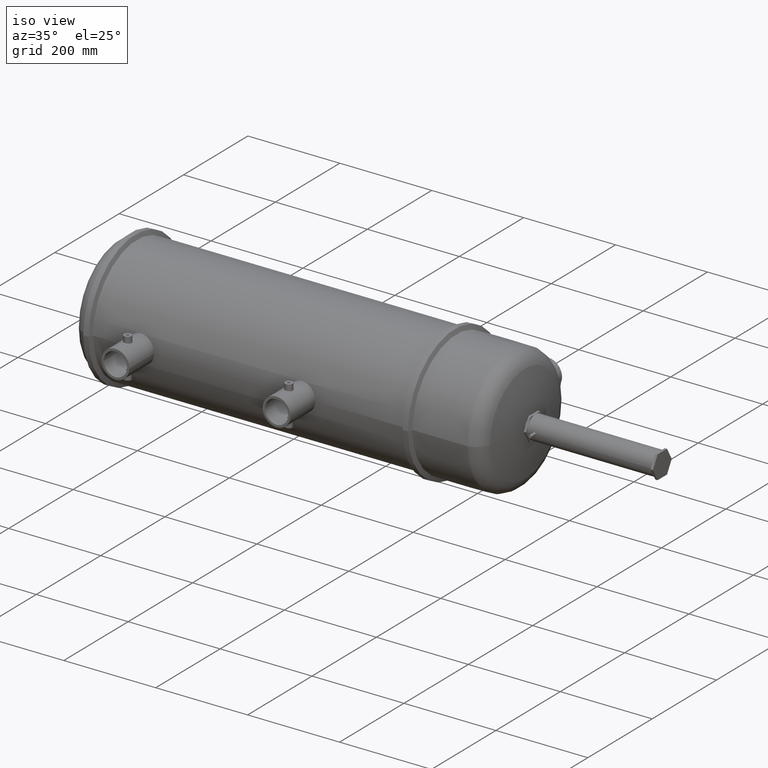
[diagram: clean part render]
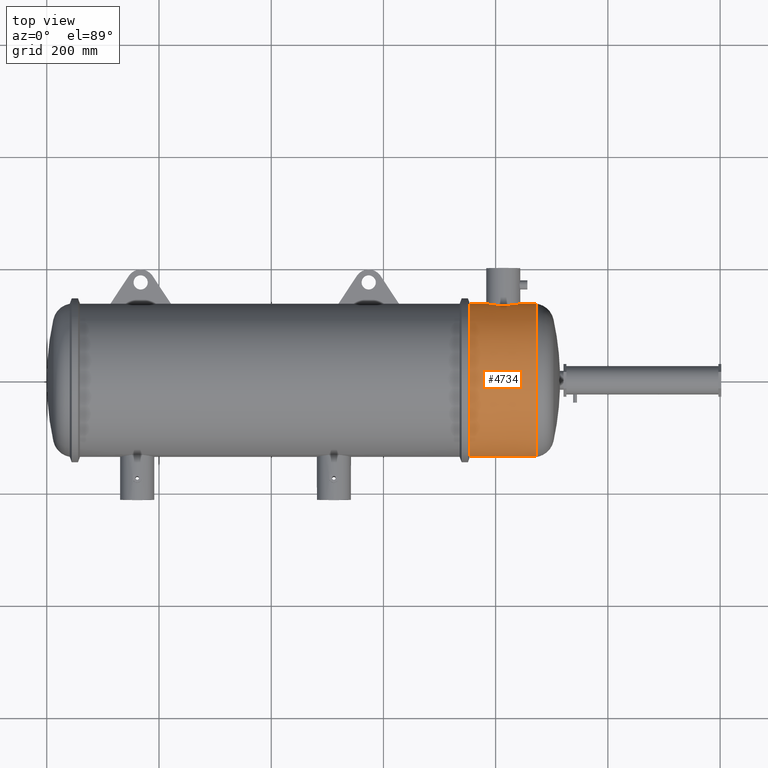
[diagram: tour spotlight — one face highlighted and labeled with its STEP entity id]
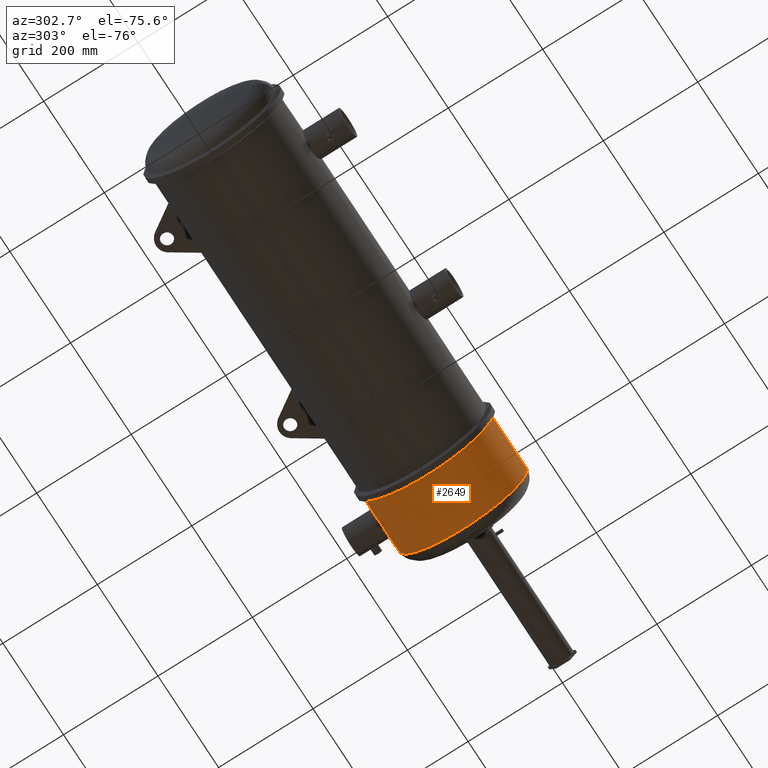
[diagram: tour spotlight — one face highlighted and labeled with its STEP entity id]
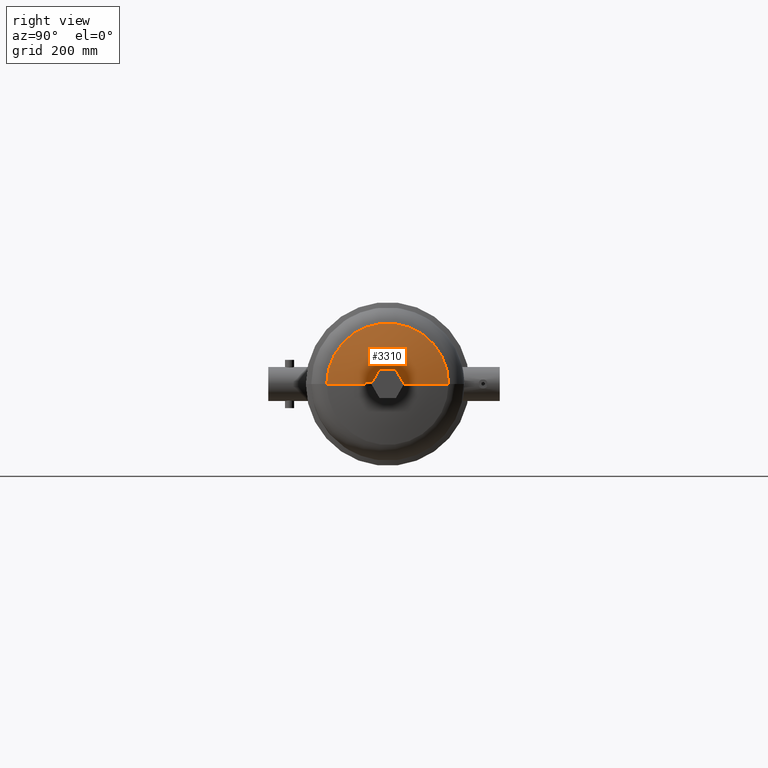
[diagram: tour spotlight — one face highlighted and labeled with its STEP entity id]
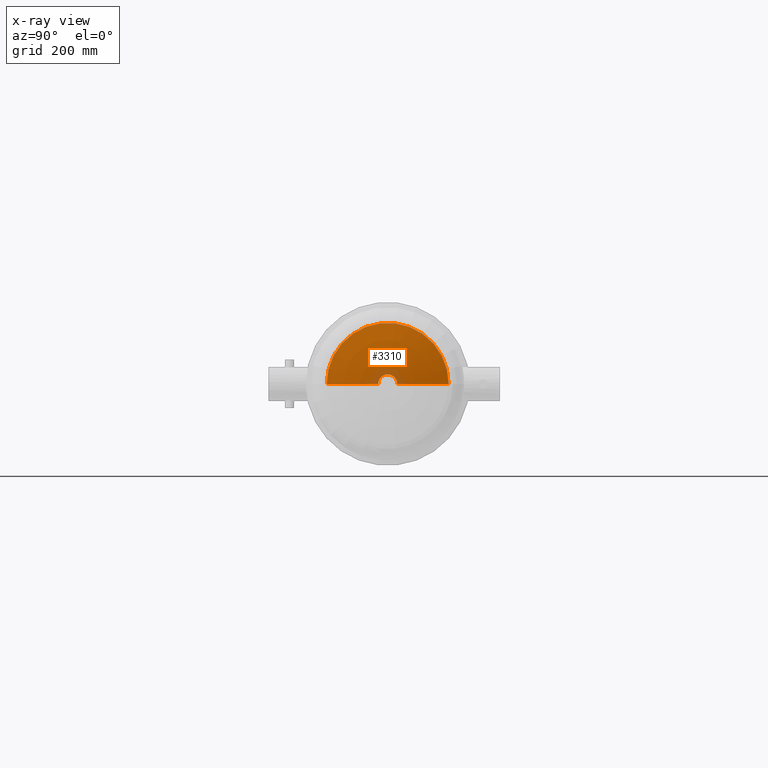
[diagram: x-ray of the same camera — body ghosted, this tour face saturated]
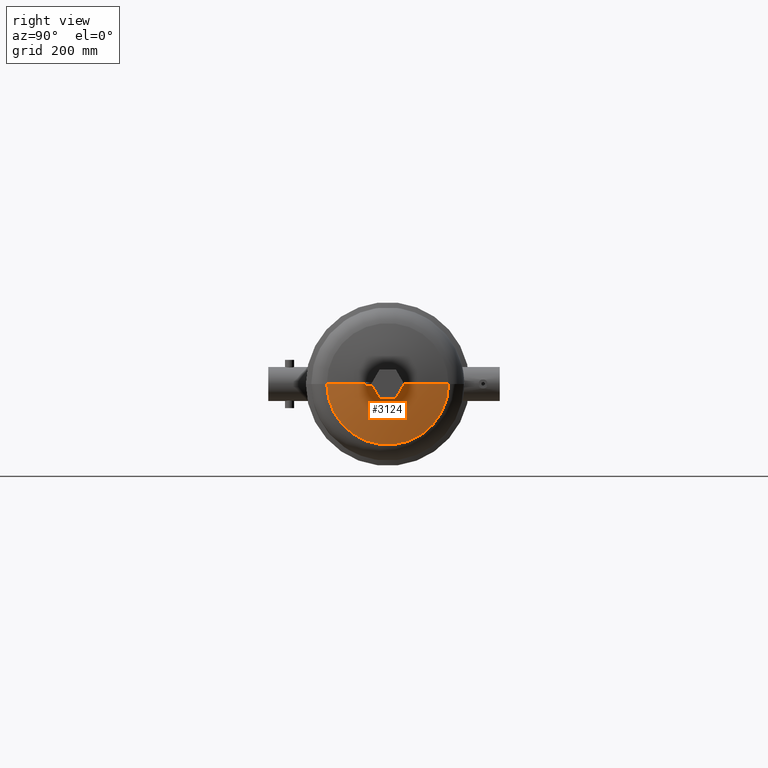
[diagram: tour spotlight — one face highlighted and labeled with its STEP entity id]
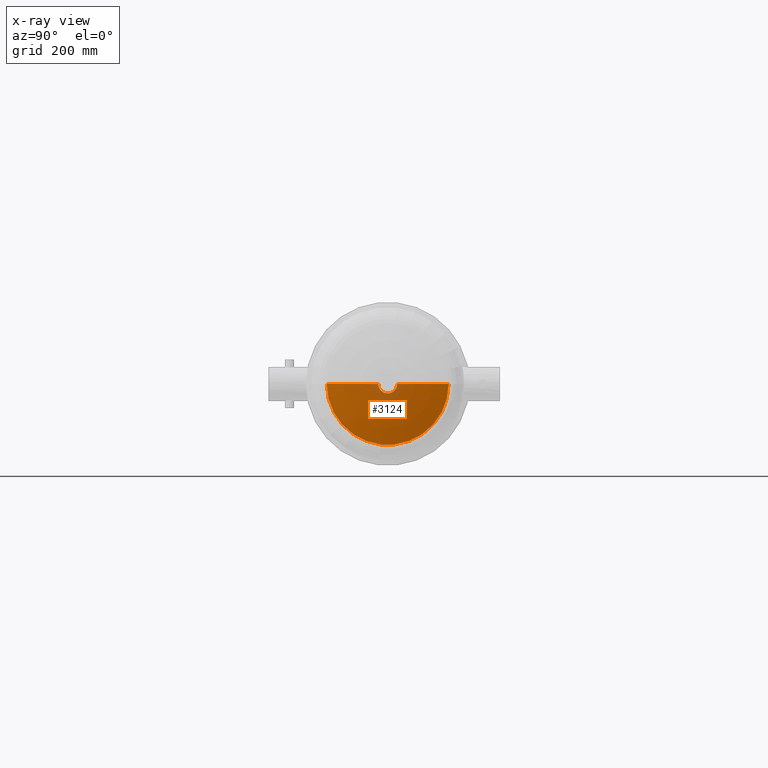
[diagram: x-ray of the same camera — body ghosted, this tour face saturated]
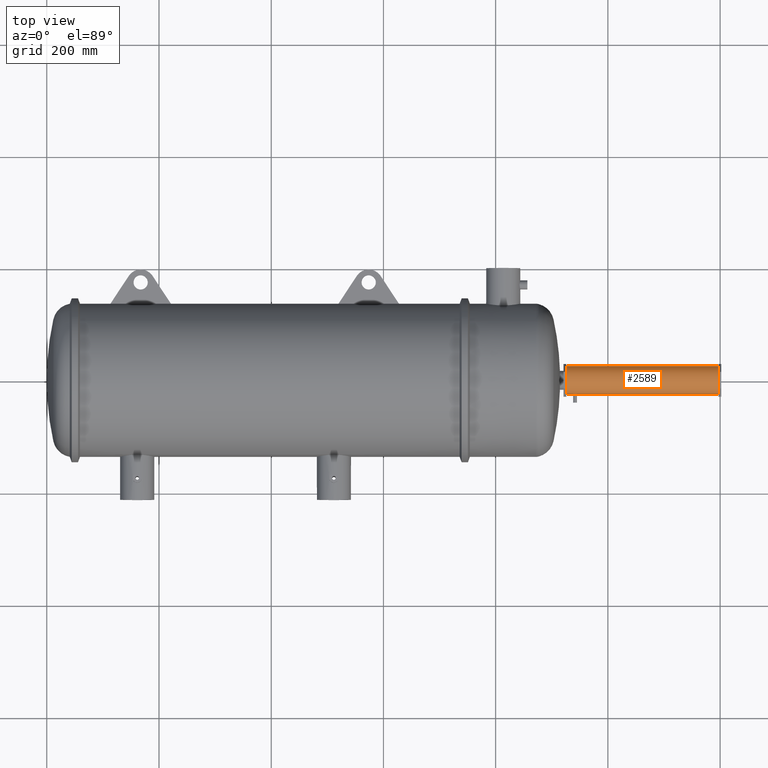
[diagram: tour spotlight — one face highlighted and labeled with its STEP entity id]
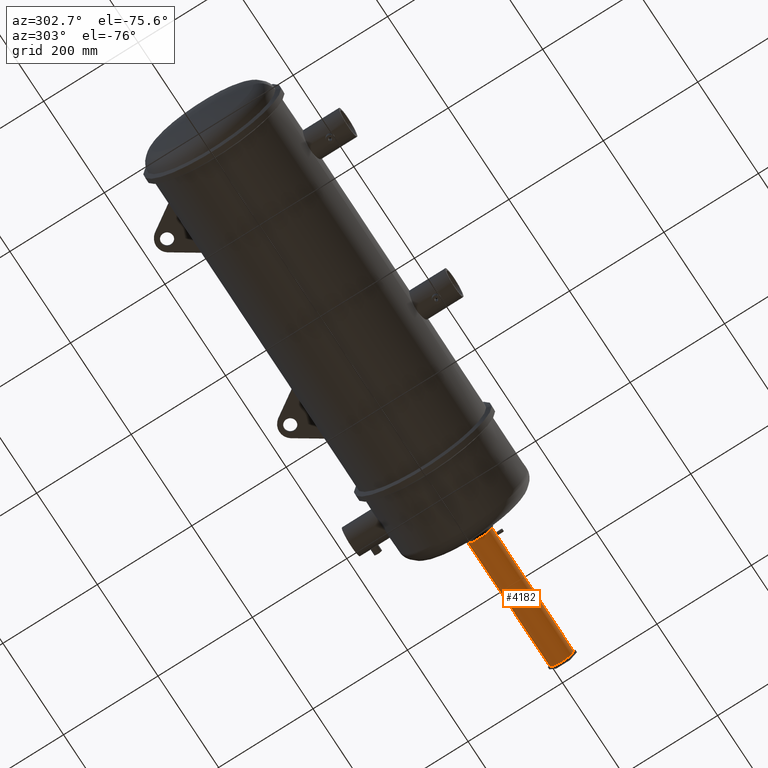
[diagram: tour spotlight — one face highlighted and labeled with its STEP entity id]
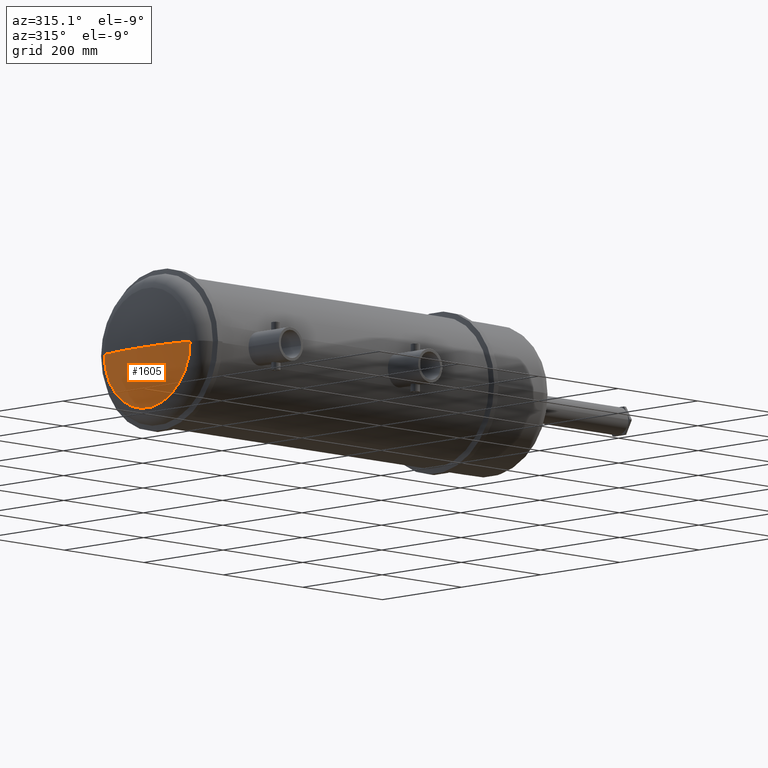
[diagram: tour spotlight — one face highlighted and labeled with its STEP entity id]
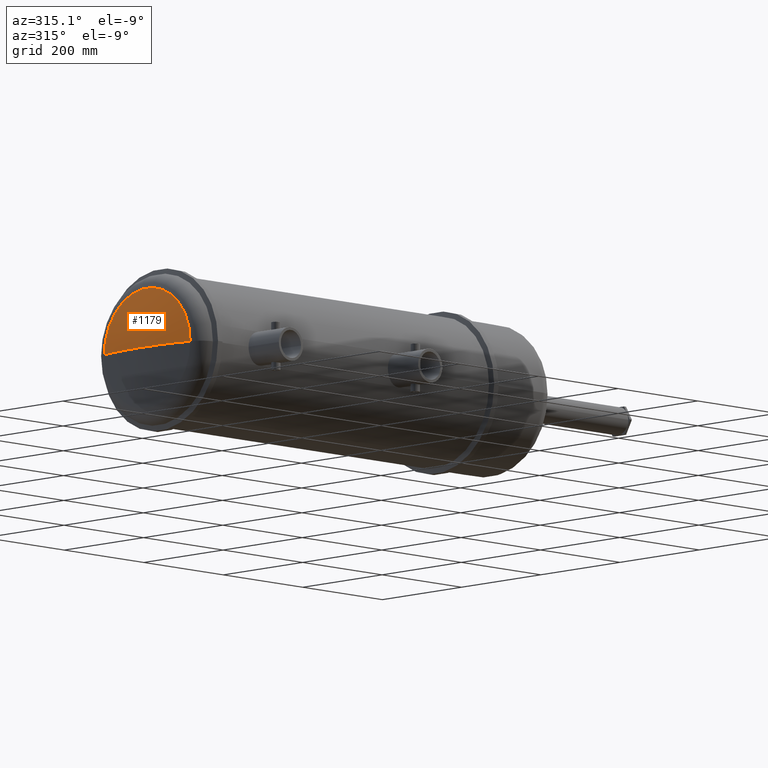
[diagram: tour spotlight — one face highlighted and labeled with its STEP entity id]
A machine part: a face-by-face anatomy tour. The part has 141 B-rep faces; the first image is the clean iso view, then the 8 largest visible faces are spotlighted one at a time (largest first), each with its STEP entity span.

Face 1 — top view, entity #4734. In plain terms, the highlighted conical surface has half-angle 0 deg.
Definition (entity closure, byte-faithful):
#7 = ORIENTED_EDGE ( 'NONE', *, *, #2448, .T. ) ;
#39 = CARTESIAN_POINT ( 'NONE',  ( 31.58685750234306200, 5.258476848051430800, 1.112805033174240500 ) ) ;
#130 = ORIENTED_EDGE ( 'NONE', *, *, #4828, .F. ) ;
#278 = EDGE_CURVE ( 'NONE', #1454, #2812, #2009, .T. ) ;
#297 = CARTESIAN_POINT ( 'NONE',  ( 33.22473305085350900, 5.375007152145108200, 0.07857161981809363000 ) ) ;
#406 = LINE ( 'NONE', #4821, #4000 ) ;
#460 = EDGE_CURVE ( 'NONE', #1786, #2357, #406, .T. ) ;
#495 = CARTESIAN_POINT ( 'NONE',  ( 30.83103226345192400, 5.374998836302141000, 0.07825566644335285600 ) ) ;
#512 = CARTESIAN_POINT ( 'NONE',  ( 30.83103226345193400, 5.374998836302141900, 3.400534629182067600E-022 ) ) ;
#558 = CARTESIAN_POINT ( 'NONE',  ( 32.45069229815430100, 5.256981334737127500, 1.119852598059827100 ) ) ;
#607 = CARTESIAN_POINT ( 'NONE',  ( 29.68681614497546000, 0.003374638380548246200, 0.0000000000000000000 ) ) ;
#636 = CARTESIAN_POINT ( 'NONE',  ( 34.32856420451256700, -5.368261710151740500, 6.578357260413644700E-016 ) ) ;
#709 = CARTESIAN_POINT ( 'NONE',  ( 33.22473305085350900, 5.375007152145108200, 2.882525699441935300E-027 ) ) ;
#735 = CARTESIAN_POINT ( 'NONE',  ( 32.96516804842019600, 5.323180133476592200, 0.7445318370650172400 ) ) ;
#804 = DIRECTION ( 'NONE',  ( 1.000000000000000000, -1.127465836012422800E-020, 0.0000000000000000000 ) ) ;
#863 = DIRECTION ( 'NONE',  ( 0.0000000000000000000, -1.000000000000000000, 0.0000000000000000000 ) ) ;
#869 = CONICAL_SURFACE ( 'NONE', #4399, 5.371636611916906100, 3.474052818024293800E-006 ) ;
#907 = CARTESIAN_POINT ( 'NONE',  ( 32.00813017866081400, 5.239970822084329100, 1.196850393700786200 ) ) ;
#927 = CARTESIAN_POINT ( 'NONE',  ( 30.85796592969974800, 5.369060761937751300, 0.2532536058862617800 ) ) ;
#945 = EDGE_CURVE ( 'NONE', #1454, #5625, #5417, .T. ) ;
#969 = VERTEX_POINT ( 'NONE', #2561 ) ;
#977 = CARTESIAN_POINT ( 'NONE',  ( 31.92914506512822100, 5.240864901208023100, 1.192932191615097200 ) ) ;
#1020 = AXIS2_PLACEMENT_3D ( 'NONE', #607, #2022, #1058 ) ;
#1058 = DIRECTION ( 'NONE',  ( 0.0000000000000000000, -1.000000000000000000, 0.0000000000000000000 ) ) ;
#1095 = DIRECTION ( 'NONE',  ( 0.9999999999939654900, -3.474052818017317700E-006, 4.254487663653736200E-022 ) ) ;
#1101 = CARTESIAN_POINT ( 'NONE',  ( 32.75760409221714300, 5.290487829825794500, 0.9494676085821129900 ) ) ;
#1122 = CARTESIAN_POINT ( 'NONE',  ( 32.90188536139031300, 5.312340386961055000, 0.8185854256729695500 ) ) ;
#1247 = ORIENTED_EDGE ( 'NONE', *, *, #278, .T. ) ;
#1299 = VECTOR ( 'NONE', #1095, 39.37007874015748100 ) ;
#1327 = CARTESIAN_POINT ( 'NONE',  ( 34.40437900370940100, 0.003374638380548246200, 0.0000000000000000000 ) ) ;
#1386 = CARTESIAN_POINT ( 'NONE',  ( 30.95406014489833200, 5.348902260343337800, 0.5299969240101997100 ) ) ;
#1423 = CARTESIAN_POINT ( 'NONE',  ( 31.25327453590104200, 5.296927616990664900, 0.9125894077740842600 ) ) ;
#1454 = VERTEX_POINT ( 'NONE', #4316 ) ;
#1491 = CARTESIAN_POINT ( 'NONE',  ( 32.02788265715272300, 5.239970892474963700, 1.196850393700786800 ) ) ;
#1511 = CARTESIAN_POINT ( 'NONE',  ( 32.10691676448205800, 5.239971174123718700, 1.196850393700786600 ) ) ;
#1551 = CARTESIAN_POINT ( 'NONE',  ( 33.21707028673045400, 5.373284174583600000, 0.1563798055111560400 ) ) ;
#1639 = CARTESIAN_POINT ( 'NONE',  ( 32.92801783973902000, 5.316718447428613100, 0.7897659797133456100 ) ) ;
#1740 = ORIENTED_EDGE ( 'NONE', *, *, #945, .F. ) ;
#1786 = VERTEX_POINT ( 'NONE', #709 ) ;
#1808 = CARTESIAN_POINT ( 'NONE',  ( 31.07680846402896800, 5.325462253071933100, 0.7307792738097600400 ) ) ;
#1825 = CARTESIAN_POINT ( 'NONE',  ( 30.89426145872730000, 5.361253980913383900, 0.3858588445409070200 ) ) ;
#1841 = CARTESIAN_POINT ( 'NONE',  ( 30.87716415684212700, 5.364906084688740900, 0.3296681650944192600 ) ) ;
#1881 = CARTESIAN_POINT ( 'NONE',  ( 32.02788265715272300, 5.239970892474963700, 1.196850393700786800 ) ) ;
#1930 = CARTESIAN_POINT ( 'NONE',  ( 32.18481371287557400, 5.241760639801891700, 1.189098269463490400 ) ) ;
#2000 = B_SPLINE_CURVE_WITH_KNOTS ( 'NONE', 3,
 ( #512, #495, #2733, #927, #4528, #4102, #1841, #1825, #4986, #3633, #1386, #5488, #4512, #1808, #2282, #3217, #5455, #2413, #1423, #5008, #2298, #5474, #2750, #39, #3181, #4132, #3616, #3664, #5023, #4967, #5438, #977, #4578, #2711, #907, #1881 ),
 .UNSPECIFIED., .F., .F.,
 ( 4, 2, 2, 2, 2, 2, 2, 2, 2, 2, 2, 2, 2, 2, 2, 2, 2, 4 ),
 ( 0.02437534108990160500, 0.03033505853182752500, 0.03182498789230903800, 0.03331491725279055200, 0.03629477597375358600, 0.03927463469471662000, 0.04225449341567965400, 0.04821421085760590300, 0.04970414021808740300, 0.05119406957856891000, 0.05417392829953166000, 0.06013364574145745000, 0.06162357510193912400, 0.06311350446242079700, 0.06609336318338446300, 0.06907322190434811400, 0.07056315126482978800, 0.07205308062531144700 ),
 .UNSPECIFIED. ) ;
#2009 = LINE ( 'NONE', #3761, #1299 ) ;
#2022 = DIRECTION ( 'NONE',  ( -1.000000000000000000, 1.127465836012422800E-020, -0.0000000000000000000 ) ) ;
#2266 = VECTOR ( 'NONE', #3252, 39.37007874015748100 ) ;
#2282 = CARTESIAN_POINT ( 'NONE',  ( 31.12617430945269000, 5.316755821743914400, 0.7908612408969031300 ) ) ;
#2298 = CARTESIAN_POINT ( 'NONE',  ( 31.33023607252609100, 5.286138489940845500, 0.9732709681420832500 ) ) ;
#2357 = VERTEX_POINT ( 'NONE', #2597 ) ;
#2413 = CARTESIAN_POINT ( 'NONE',  ( 31.23833262110741400, 5.299136523104079900, 0.8996923153697169400 ) ) ;
#2448 = EDGE_CURVE ( 'NONE', #2812, #2357, #2490, .T. ) ;
#2469 = CARTESIAN_POINT ( 'NONE',  ( 33.14826281554688600, 5.358467521847696700, 0.4227538735298421700 ) ) ;
#2490 = CIRCLE ( 'NONE', #5611, 5.371636348532288900 ) ;
#2506 = CARTESIAN_POINT ( 'NONE',  ( 32.84690903481529700, 5.303566969610669100, 0.8735895024734088300 ) ) ;
#2561 = CARTESIAN_POINT ( 'NONE',  ( 32.02788265715272300, 5.239970892474963700, 1.196850393700786800 ) ) ;
#2597 = CARTESIAN_POINT ( 'NONE',  ( 34.32856420451256700, 5.375010986912838200, 0.0000000000000000000 ) ) ;
#2672 = ORIENTED_EDGE ( 'NONE', *, *, #5595, .F. ) ;
#2678 = CARTESIAN_POINT ( 'NONE',  ( 30.83103226345193400, 5.374998836302141900, 3.400534629182067600E-022 ) ) ;
#2711 = CARTESIAN_POINT ( 'NONE',  ( 31.98825597444246300, 5.240083491300229200, 1.196357436079847000 ) ) ;
#2733 = CARTESIAN_POINT ( 'NONE',  ( 30.83863205800174600, 5.373289455517142000, 0.1562070676756268900 ) ) ;
#2750 = CARTESIAN_POINT ( 'NONE',  ( 31.49598095329731300, 5.266415086524901300, 1.075048495852498200 ) ) ;
#2812 = VERTEX_POINT ( 'NONE', #636 ) ;
#2898 = CARTESIAN_POINT ( 'NONE',  ( 33.17869374455626300, 5.364933934029356700, 0.3293522415625353400 ) ) ;
#2942 = CARTESIAN_POINT ( 'NONE',  ( 33.00059758545160800, 5.329538235989171600, 0.6976112596489262300 ) ) ;
#2964 = CARTESIAN_POINT ( 'NONE',  ( 33.18399554066319700, 5.366075307798339200, 0.3102325777369302500 ) ) ;
#3181 = CARTESIAN_POINT ( 'NONE',  ( 31.60533940643878400, 5.256956752463022300, 1.119953887652871600 ) ) ;
#3217 = CARTESIAN_POINT ( 'NONE',  ( 31.19512292431209100, 5.305752662114170600, 0.8598503524574189200 ) ) ;
#3228 = ORIENTED_EDGE ( 'NONE', *, *, #5294, .F. ) ;
#3252 = DIRECTION ( 'NONE',  ( 0.9999999999939654900, 3.474052818017293900E-006, 0.0000000000000000000 ) ) ;
#3268 = CARTESIAN_POINT ( 'NONE',  ( 32.41366189040380900, 5.254130732717211300, 1.133142628753075900 ) ) ;
#3438 = CARTESIAN_POINT ( 'NONE',  ( 33.16149735624106400, 5.361260368076528100, 0.3859032922358927000 ) ) ;
#3471 = LINE ( 'NONE', #3644, #2266 ) ;
#3574 = DIRECTION ( 'NONE',  ( 0.0000000000000000000, 1.000000000000000000, 0.0000000000000000000 ) ) ;
#3616 = CARTESIAN_POINT ( 'NONE',  ( 31.66111019847690500, 5.252764934420483200, 1.139435411990092000 ) ) ;
#3633 = CARTESIAN_POINT ( 'NONE',  ( 30.93734410167256900, 5.352296025853702200, 0.4946700955911840200 ) ) ;
#3644 = CARTESIAN_POINT ( 'NONE',  ( 34.40437900370940100, 5.375011250297454500, 0.0000000000000000000 ) ) ;
#3664 = CARTESIAN_POINT ( 'NONE',  ( 31.71737458320906500, 5.249034103151256400, 1.156534703098517800 ) ) ;
#3761 = CARTESIAN_POINT ( 'NONE',  ( 34.40437900370940100, -5.368261973536357700, 6.578357582966772700E-016 ) ) ;
#3790 = CARTESIAN_POINT ( 'NONE',  ( 32.39487664844863000, 5.252782445548122700, 1.139367018923079800 ) ) ;
#3812 = CARTESIAN_POINT ( 'NONE',  ( 32.72581737947652400, 5.286180101508514400, 0.9730754312466589600 ) ) ;
#3891 = CARTESIAN_POINT ( 'NONE',  ( 33.22473305085350900, 5.375007152145108200, 2.882525699441935300E-027 ) ) ;
#3931 = VERTEX_POINT ( 'NONE', #2678 ) ;
#4000 = VECTOR ( 'NONE', #5789, 39.37007874015748100 ) ;
#4102 = CARTESIAN_POINT ( 'NONE',  ( 30.87191213052774700, 5.366036580407972600, 0.3107580662539414800 ) ) ;
#4132 = CARTESIAN_POINT ( 'NONE',  ( 31.64245352754537800, 5.254102133673932900, 1.133262500589694100 ) ) ;
#4163 = CARTESIAN_POINT ( 'NONE',  ( 32.46898015758483100, 5.258486430730426900, 1.112774243046456200 ) ) ;
#4259 = CARTESIAN_POINT ( 'NONE',  ( 33.19791896264290200, 5.369094998636181300, 0.2526887335236406300 ) ) ;
#4270 = B_SPLINE_CURVE_WITH_KNOTS ( 'NONE', 3,
 ( #1491, #1511, #1930, #4664, #5128, #3790, #3268, #558, #4163, #5075, #4763, #3812, #1101, #5631, #2506, #1122, #1639, #735, #4722, #2942, #5676, #4281, #5171, #2469, #3438, #2898, #2964, #4317, #4259, #1551, #297, #3891 ),
 .UNSPECIFIED., .F., .F.,
 ( 4, 2, 2, 2, 2, 2, 2, 2, 2, 2, 2, 2, 2, 2, 2, 4 ),
 ( 0.07205308062531144700, 0.07801462297240298300, 0.08099539414594875100, 0.08248577973272149000, 0.08397616531949421400, 0.08993770766658575100, 0.09291847884013138000, 0.09589925001367700900, 0.09888002118722263900, 0.1003704067739954500, 0.1018607923607682500, 0.1078223347078591500, 0.1108031058814045200, 0.1122934914681772700, 0.1137838770549500200, 0.1197454194020408400 ),
 .UNSPECIFIED. ) ;
#4281 = CARTESIAN_POINT ( 'NONE',  ( 33.06667522752630400, 5.341840785688615000, 0.5996349560963735200 ) ) ;
#4316 = CARTESIAN_POINT ( 'NONE',  ( 29.68681614497546000, -5.368245584473813300, 6.578347386283715700E-016 ) ) ;
#4317 = CARTESIAN_POINT ( 'NONE',  ( 33.19360572015732200, 5.368155350455688300, 0.2719025415243690500 ) ) ;
#4399 = AXIS2_PLACEMENT_3D ( 'NONE', #1327, #804, #3574 ) ;
#4512 = CARTESIAN_POINT ( 'NONE',  ( 31.01148687909444500, 5.337651082092739000, 0.6331847186924062200 ) ) ;
#4528 = CARTESIAN_POINT ( 'NONE',  ( 30.86231704586423800, 5.368113036676255900, 0.2725715318026137900 ) ) ;
#4578 = CARTESIAN_POINT ( 'NONE',  ( 31.94878126432617200, 5.240530822161156600, 1.194397069026488200 ) ) ;
#4644 = CARTESIAN_POINT ( 'NONE',  ( 29.68681614497546000, 5.374994861234911000, 0.0000000000000000000 ) ) ;
#4664 = CARTESIAN_POINT ( 'NONE',  ( 32.30000520246294800, 5.246897285793699500, 1.166161644748710900 ) ) ;
#4722 = CARTESIAN_POINT ( 'NONE',  ( 32.97720940089072900, 5.325316457888027900, 0.7291190128835175500 ) ) ;
#4734 = ADVANCED_FACE ( 'NONE', ( #5824 ), #869, .T. ) ;
#4763 = CARTESIAN_POINT ( 'NONE',  ( 32.62802593050133700, 5.273853924529050600, 1.038474911990452800 ) ) ;
#4821 = CARTESIAN_POINT ( 'NONE',  ( 34.40437900370940100, 5.375011250297454500, 0.0000000000000000000 ) ) ;
#4828 = EDGE_CURVE ( 'NONE', #3931, #969, #2000, .T. ) ;
#4858 = CARTESIAN_POINT ( 'NONE',  ( 34.32856420451256700, 0.003374638380548246200, 0.0000000000000000000 ) ) ;
#4873 = EDGE_LOOP ( 'NONE', ( #1740, #1247, #7, #5221, #2672, #130, #3228 ) ) ;
#4948 = DIRECTION ( 'NONE',  ( -1.000000000000000000, 1.127465836012422800E-020, -0.0000000000000000000 ) ) ;
#4967 = CARTESIAN_POINT ( 'NONE',  ( 31.83185565326762800, 5.243498340791435700, 1.181333493925154500 ) ) ;
#4986 = CARTESIAN_POINT ( 'NONE',  ( 30.90744471476872200, 5.358471811652887800, 0.4226010668789392800 ) ) ;
#5008 = CARTESIAN_POINT ( 'NONE',  ( 31.29884841681606400, 5.290387022889037300, 0.9500027139296293200 ) ) ;
#5023 = CARTESIAN_POINT ( 'NONE',  ( 31.75527599645343800, 5.246921278167323300, 1.166045032862785200 ) ) ;
#5075 = CARTESIAN_POINT ( 'NONE',  ( 32.55930404220627100, 5.266376378177812800, 1.075250980926206300 ) ) ;
#5128 = CARTESIAN_POINT ( 'NONE',  ( 32.33812479700151200, 5.249018253389073700, 1.156617652374690100 ) ) ;
#5171 = CARTESIAN_POINT ( 'NONE',  ( 33.10340387632388100, 5.349201997331454600, 0.5308405222274683600 ) ) ;
#5221 = ORIENTED_EDGE ( 'NONE', *, *, #460, .F. ) ;
#5294 = EDGE_CURVE ( 'NONE', #5625, #3931, #3471, .T. ) ;
#5417 = CIRCLE ( 'NONE', #1020, 5.371620222854362600 ) ;
#5438 = CARTESIAN_POINT ( 'NONE',  ( 31.87053388843092000, 5.242188156944235900, 1.187111651765797800 ) ) ;
#5455 = CARTESIAN_POINT ( 'NONE',  ( 31.20927811925759300, 5.303546049320357400, 0.8733396431469152600 ) ) ;
#5474 = CARTESIAN_POINT ( 'NONE',  ( 31.42734426139346100, 5.273900203748065800, 1.038204978986063000 ) ) ;
#5488 = CARTESIAN_POINT ( 'NONE',  ( 30.99109319615681800, 5.341586374340946200, 0.5992154377621176100 ) ) ;
#5595 = EDGE_CURVE ( 'NONE', #969, #1786, #4270, .T. ) ;
#5611 = AXIS2_PLACEMENT_3D ( 'NONE', #4858, #4948, #863 ) ;
#5625 = VERTEX_POINT ( 'NONE', #4644 ) ;
#5631 = CARTESIAN_POINT ( 'NONE',  ( 32.81806526210050400, 5.299171399217917700, 0.8997741735441453500 ) ) ;
#5676 = CARTESIAN_POINT ( 'NONE',  ( 33.01197385472843100, 5.331629232885307900, 0.6814711703378298900 ) ) ;
#5789 = DIRECTION ( 'NONE',  ( 0.9999999999939654900, 3.474052818017293900E-006, 0.0000000000000000000 ) ) ;
#5824 = FACE_OUTER_BOUND ( 'NONE', #4873, .T. ) ;

Face 2 — auxiliary view, entity #2649. In plain terms, the highlighted conical surface has half-angle 0 deg.
Definition (entity closure, byte-faithful):
#4 = CARTESIAN_POINT ( 'NONE',  ( 31.53345936424990400, 5.263135668370251700, -1.090651176474645200 ) ) ;
#14 = CARTESIAN_POINT ( 'NONE',  ( 33.22082915978769100, 5.374138326320411000, -0.09858739693553492100 ) ) ;
#28 = CARTESIAN_POINT ( 'NONE',  ( 31.29844471840083400, 5.290443622725666400, -0.9496843825554324200 ) ) ;
#34 = CARTESIAN_POINT ( 'NONE',  ( 33.10073036205635300, 5.348738477119622000, -0.5308807458233806300 ) ) ;
#43 = CARTESIAN_POINT ( 'NONE',  ( 31.42878578859614800, 5.274100914373304000, -1.036300789051794100 ) ) ;
#64 = CARTESIAN_POINT ( 'NONE',  ( 29.68681614497546000, 0.003374638380548246200, 0.0000000000000000000 ) ) ;
#148 = CARTESIAN_POINT ( 'NONE',  ( 31.19494508331537800, 5.305780378298197600, -0.8596809672092365900 ) ) ;
#278 = EDGE_CURVE ( 'NONE', #1454, #2812, #2009, .T. ) ;
#295 = DIRECTION ( 'NONE',  ( 0.0000000000000000000, -1.000000000000000000, 0.0000000000000000000 ) ) ;
#321 = CIRCLE ( 'NONE', #1969, 5.371620222854362600 ) ;
#398 = CARTESIAN_POINT ( 'NONE',  ( 33.09190260396314200, 5.346972362385196600, -0.5483555822020144100 ) ) ;
#406 = LINE ( 'NONE', #4821, #4000 ) ;
#431 = CARTESIAN_POINT ( 'NONE',  ( 32.62705067431011200, 5.274113308222191600, -1.036259218606508900 ) ) ;
#442 = CARTESIAN_POINT ( 'NONE',  ( 31.39511578833669600, 5.278033970711362600, -1.016091764080605300 ) ) ;
#451 = CARTESIAN_POINT ( 'NONE',  ( 33.00086384710080300, 5.329556835120905100, -0.6980494274618062000 ) ) ;
#460 = EDGE_CURVE ( 'NONE', #1786, #2357, #406, .T. ) ;
#463 = CARTESIAN_POINT ( 'NONE',  ( 31.23829302485243500, 5.299142407011722800, -0.8996578007329840700 ) ) ;
#469 = CARTESIAN_POINT ( 'NONE',  ( 33.06421588149989100, 5.341505224299186100, -0.5999916835917200600 ) ) ;
#501 = CARTESIAN_POINT ( 'NONE',  ( 31.89119060226774800, 5.241717796186256000, -1.189180781524855200 ) ) ;
#531 = CARTESIAN_POINT ( 'NONE',  ( 30.83294351984487800, 5.374571991384081000, -0.07827711124025144000 ) ) ;
#586 = CARTESIAN_POINT ( 'NONE',  ( 30.95454754460674400, 5.348828838752695900, -0.5298956708339120900 ) ) ;
#636 = CARTESIAN_POINT ( 'NONE',  ( 34.32856420451256700, -5.368261710151740500, 6.578357260413644700E-016 ) ) ;
#709 = CARTESIAN_POINT ( 'NONE',  ( 33.22473305085350900, 5.375007152145108200, 2.882525699441935300E-027 ) ) ;
#759 = ORIENTED_EDGE ( 'NONE', *, *, #5294, .T. ) ;
#856 = CARTESIAN_POINT ( 'NONE',  ( 32.66068024433766200, 5.278042197049218800, -1.016072189651990000 ) ) ;
#880 = CARTESIAN_POINT ( 'NONE',  ( 32.41419283069964800, 5.253710940390149600, -1.135476818427418700 ) ) ;
#898 = CARTESIAN_POINT ( 'NONE',  ( 32.52234429162767500, 5.263142821281348900, -1.090633590878085300 ) ) ;
#920 = CARTESIAN_POINT ( 'NONE',  ( 32.75823869315796300, 5.290268833633786200, -0.9513762632946780600 ) ) ;
#965 = CARTESIAN_POINT ( 'NONE',  ( 30.84701311955299700, 5.371460056882602500, -0.1959285689949342400 ) ) ;
#983 = CARTESIAN_POINT ( 'NONE',  ( 30.93771629888560100, 5.352233806928872200, -0.4943429953940852700 ) ) ;
#984 = B_SPLINE_CURVE_WITH_KNOTS ( 'NONE', 3,
 ( #5420, #1776, #4970, #501, #4931, #2684, #4501, #3127, #2227, #4, #4952, #3145, #43, #442, #2248, #2699, #28, #3167, #463, #3186, #148, #2352, #1463, #4168, #3297, #4562, #586, #983, #2335, #3734, #1408, #3223, #965, #3680, #5065, #531, #1919, #1032 ),
 .UNSPECIFIED., .F., .F.,
 ( 4, 2, 2, 2, 2, 2, 2, 2, 2, 2, 2, 2, 2, 2, 2, 2, 2, 2, 4 ),
 ( 0.1674105723754243400, 0.1703883349238592700, 0.1718772161980768900, 0.1733660974722945300, 0.1793216225691650300, 0.1822993851176001300, 0.1837882663918178300, 0.1852771476660355400, 0.1882549102144709100, 0.1897437914886884700, 0.1912326727629060400, 0.1971881978597765400, 0.2001659604082118600, 0.2016548416824295300, 0.2031437229566472000, 0.2090992480535178700, 0.2105881293277355700, 0.2120770106019532800, 0.2150547731503886500 ),
 .UNSPECIFIED. ) ;
#1032 = CARTESIAN_POINT ( 'NONE',  ( 30.83103226345193400, 5.374998836302141900, 3.400534629182067600E-022 ) ) ;
#1095 = DIRECTION ( 'NONE',  ( 0.9999999999939654900, -3.474052818017317700E-006, 4.254487663653736200E-022 ) ) ;
#1299 = VECTOR ( 'NONE', #1095, 39.37007874015748100 ) ;
#1359 = CARTESIAN_POINT ( 'NONE',  ( 32.18430241924797700, 5.242270609155128500, -1.186749732937693700 ) ) ;
#1408 = CARTESIAN_POINT ( 'NONE',  ( 30.86961381730569100, 5.366513525192755400, -0.3114797351847296000 ) ) ;
#1454 = VERTEX_POINT ( 'NONE', #4316 ) ;
#1463 = CARTESIAN_POINT ( 'NONE',  ( 31.07628912774867700, 5.325557336652733100, -0.7300522761811089100 ) ) ;
#1741 = CARTESIAN_POINT ( 'NONE',  ( 32.10607064759450700, 5.240408861681304500, -1.194940275329296600 ) ) ;
#1764 = CARTESIAN_POINT ( 'NONE',  ( 32.02788265715272300, 5.239970892474964600, -1.196850393700786800 ) ) ;
#1776 = CARTESIAN_POINT ( 'NONE',  ( 31.98881250482424200, 5.239970753243179400, -1.196850393700787100 ) ) ;
#1786 = VERTEX_POINT ( 'NONE', #709 ) ;
#1787 = CARTESIAN_POINT ( 'NONE',  ( 33.21497648382227700, 5.372840339181271600, -0.1575404199308271800 ) ) ;
#1791 = AXIS2_PLACEMENT_3D ( 'NONE', #5115, #4610, #4595 ) ;
#1799 = CARTESIAN_POINT ( 'NONE',  ( 33.20916341164983300, 5.371554278457638900, -0.1963562277653020400 ) ) ;
#1812 = B_SPLINE_CURVE_WITH_KNOTS ( 'NONE', 3,
 ( #5842, #5407, #4486, #3568, #14, #1787, #1799, #5428, #3152, #2275, #4941, #34, #398, #469, #3587, #451, #4021, #3610, #2256, #4959, #920, #5365, #856, #431, #4073, #4444, #898, #880, #4057, #3174, #4977, #1359, #4896, #1741, #5826, #1764 ),
 .UNSPECIFIED., .F., .F.,
 ( 4, 2, 2, 2, 2, 2, 2, 2, 2, 2, 2, 2, 2, 2, 2, 2, 2, 4 ),
 ( 0.1197454194020408400, 0.1212349554324590000, 0.1227244914628771700, 0.1257035635237135100, 0.1316617076453861800, 0.1331512436758043600, 0.1346407797062225100, 0.1376198517670590400, 0.1405989238278955700, 0.1435779958887320700, 0.1495361400104048600, 0.1510256760408231200, 0.1525152120712414100, 0.1554942841320779400, 0.1614524282537512800, 0.1629419642841695700, 0.1644315003145878100, 0.1674105723754243400 ),
 .UNSPECIFIED. ) ;
#1917 = CONICAL_SURFACE ( 'NONE', #1791, 5.371636611916906100, 3.474052818024293800E-006 ) ;
#1919 = CARTESIAN_POINT ( 'NONE',  ( 30.83103226345193800, 5.374998836302142800, -0.03910030886674751400 ) ) ;
#1969 = AXIS2_PLACEMENT_3D ( 'NONE', #64, #4934, #5012 ) ;
#1996 = EDGE_CURVE ( 'NONE', #5625, #1454, #321, .T. ) ;
#2009 = LINE ( 'NONE', #3761, #1299 ) ;
#2227 = CARTESIAN_POINT ( 'NONE',  ( 31.64162837312971600, 5.253703921727046500, -1.135496613209512100 ) ) ;
#2248 = CARTESIAN_POINT ( 'NONE',  ( 31.37857261856888500, 5.280045898138515000, -1.005599260486813600 ) ) ;
#2256 = CARTESIAN_POINT ( 'NONE',  ( 32.90134203306479300, 5.312250034602179500, -0.8191758904936034000 ) ) ;
#2266 = VECTOR ( 'NONE', #3252, 39.37007874015748100 ) ;
#2275 = CARTESIAN_POINT ( 'NONE',  ( 33.12560019766649300, 5.353786792635261800, -0.4773432775793918800 ) ) ;
#2335 = CARTESIAN_POINT ( 'NONE',  ( 30.92976674797780100, 5.353860987391354500, -0.4764188816155661700 ) ) ;
#2339 = ORIENTED_EDGE ( 'NONE', *, *, #3517, .F. ) ;
#2352 = CARTESIAN_POINT ( 'NONE',  ( 31.12556964302670100, 5.316855007442508300, -0.7902215687275642200 ) ) ;
#2357 = VERTEX_POINT ( 'NONE', #2597 ) ;
#2523 = CARTESIAN_POINT ( 'NONE',  ( 34.32856420451256700, 0.003374638380548246200, 0.0000000000000000000 ) ) ;
#2597 = CARTESIAN_POINT ( 'NONE',  ( 34.32856420451256700, 5.375010986912838200, 0.0000000000000000000 ) ) ;
#2649 = ADVANCED_FACE ( 'NONE', ( #4472 ), #1917, .T. ) ;
#2678 = CARTESIAN_POINT ( 'NONE',  ( 30.83103226345193400, 5.374998836302141900, 3.400534629182067600E-022 ) ) ;
#2684 = CARTESIAN_POINT ( 'NONE',  ( 31.83264251393445200, 5.243572282793154600, -1.180983222842296500 ) ) ;
#2699 = CARTESIAN_POINT ( 'NONE',  ( 31.32980646555389000, 5.286194386894686100, -0.9729700055023001700 ) ) ;
#2812 = VERTEX_POINT ( 'NONE', #636 ) ;
#2984 = DIRECTION ( 'NONE',  ( -1.000000000000000000, 1.127465836012422800E-020, -0.0000000000000000000 ) ) ;
#3053 = EDGE_CURVE ( 'NONE', #1786, #4289, #1812, .T. ) ;
#3127 = CARTESIAN_POINT ( 'NONE',  ( 31.71633212049722800, 5.248659503669352400, -1.158281756377822900 ) ) ;
#3145 = CARTESIAN_POINT ( 'NONE',  ( 31.44595084092977500, 5.272175740991790400, -1.046037384899580500 ) ) ;
#3152 = CARTESIAN_POINT ( 'NONE',  ( 33.16345562796800600, 5.361604818142198200, -0.3862091517007331100 ) ) ;
#3167 = CARTESIAN_POINT ( 'NONE',  ( 31.25311627746467000, 5.296951006384571900, -0.9124528693699445200 ) ) ;
#3174 = CARTESIAN_POINT ( 'NONE',  ( 32.24296826469321800, 5.244351433405340900, -1.177530078269982000 ) ) ;
#3186 = CARTESIAN_POINT ( 'NONE',  ( 31.20922390561779000, 5.303554403102279700, -0.8732890669137389800 ) ) ;
#3223 = CARTESIAN_POINT ( 'NONE',  ( 30.85039505893578800, 5.370716565034249400, -0.2153103285148648700 ) ) ;
#3252 = DIRECTION ( 'NONE',  ( 0.9999999999939654900, 3.474052818017293900E-006, 0.0000000000000000000 ) ) ;
#3297 = CARTESIAN_POINT ( 'NONE',  ( 30.99128170146113700, 5.341549640586927200, -0.5995454261764849900 ) ) ;
#3454 = ORIENTED_EDGE ( 'NONE', *, *, #4267, .T. ) ;
#3471 = LINE ( 'NONE', #3644, #2266 ) ;
#3479 = CARTESIAN_POINT ( 'NONE',  ( 32.02788265715272300, 5.239970892474964600, -1.196850393700786800 ) ) ;
#3517 = EDGE_CURVE ( 'NONE', #4289, #3931, #984, .T. ) ;
#3559 = ORIENTED_EDGE ( 'NONE', *, *, #460, .T. ) ;
#3568 = CARTESIAN_POINT ( 'NONE',  ( 33.22230154814590700, 5.374465821000414100, -0.07876896833308408300 ) ) ;
#3587 = CARTESIAN_POINT ( 'NONE',  ( 33.04415642138909000, 5.337635447204068100, -0.6333664305103029500 ) ) ;
#3595 = ORIENTED_EDGE ( 'NONE', *, *, #1996, .F. ) ;
#3610 = CARTESIAN_POINT ( 'NONE',  ( 32.92792478182008900, 5.316702292518723300, -0.7898787310629178400 ) ) ;
#3644 = CARTESIAN_POINT ( 'NONE',  ( 34.40437900370940100, 5.375011250297454500, 0.0000000000000000000 ) ) ;
#3680 = CARTESIAN_POINT ( 'NONE',  ( 30.84119191677661900, 5.372743585615908500, -0.1568628562948208800 ) ) ;
#3734 = CARTESIAN_POINT ( 'NONE',  ( 30.89231092790695500, 5.361598367606330100, -0.3860697943356616900 ) ) ;
#3761 = CARTESIAN_POINT ( 'NONE',  ( 34.40437900370940100, -5.368261973536357700, 6.578357582966772700E-016 ) ) ;
#3931 = VERTEX_POINT ( 'NONE', #2678 ) ;
#4000 = VECTOR ( 'NONE', #5789, 39.37007874015748100 ) ;
#4021 = CARTESIAN_POINT ( 'NONE',  ( 32.97763081812398400, 5.325347802394409400, -0.7293577083249425100 ) ) ;
#4057 = CARTESIAN_POINT ( 'NONE',  ( 32.33955434634994200, 5.248670880346658400, -1.158240150164119700 ) ) ;
#4073 = CARTESIAN_POINT ( 'NONE',  ( 32.60989060384157100, 5.272188239954296300, -1.045995255113724200 ) ) ;
#4168 = CARTESIAN_POINT ( 'NONE',  ( 31.01139650293129800, 5.337668865007372300, -0.6330250308974158000 ) ) ;
#4267 = EDGE_CURVE ( 'NONE', #2357, #2812, #5746, .T. ) ;
#4268 = ORIENTED_EDGE ( 'NONE', *, *, #3053, .F. ) ;
#4289 = VERTEX_POINT ( 'NONE', #3479 ) ;
#4316 = CARTESIAN_POINT ( 'NONE',  ( 29.68681614497546000, -5.368245584473813300, 6.578347386283715700E-016 ) ) ;
#4444 = CARTESIAN_POINT ( 'NONE',  ( 32.55775587636589600, 5.266599087678765800, -1.073889692553705400 ) ) ;
#4472 = FACE_OUTER_BOUND ( 'NONE', #5498, .T. ) ;
#4486 = CARTESIAN_POINT ( 'NONE',  ( 33.22425034495167800, 5.374899535651269200, -0.03931148845079431700 ) ) ;
#4501 = CARTESIAN_POINT ( 'NONE',  ( 31.81308463744393600, 5.244337985502618000, -1.177583126291964900 ) ) ;
#4562 = CARTESIAN_POINT ( 'NONE',  ( 30.96345040541367800, 5.347046962991015600, -0.5475593072732140000 ) ) ;
#4595 = DIRECTION ( 'NONE',  ( 0.0000000000000000000, 1.000000000000000000, 0.0000000000000000000 ) ) ;
#4610 = DIRECTION ( 'NONE',  ( 1.000000000000000000, -1.127465836012422800E-020, 0.0000000000000000000 ) ) ;
#4644 = CARTESIAN_POINT ( 'NONE',  ( 29.68681614497546000, 5.374994861234911000, 0.0000000000000000000 ) ) ;
#4821 = CARTESIAN_POINT ( 'NONE',  ( 34.40437900370940100, 5.375011250297454500, 0.0000000000000000000 ) ) ;
#4896 = CARTESIAN_POINT ( 'NONE',  ( 32.16474193428262400, 5.241723004992022300, -1.189162138988253800 ) ) ;
#4931 = CARTESIAN_POINT ( 'NONE',  ( 31.87167228761573400, 5.242263430407773800, -1.186776477104255700 ) ) ;
#4934 = DIRECTION ( 'NONE',  ( -1.000000000000000000, 1.127465836012422800E-020, -0.0000000000000000000 ) ) ;
#4937 = AXIS2_PLACEMENT_3D ( 'NONE', #2523, #2984, #295 ) ;
#4941 = CARTESIAN_POINT ( 'NONE',  ( 33.11757062371592000, 5.352143923326242900, -0.4953954982943797900 ) ) ;
#4952 = CARTESIAN_POINT ( 'NONE',  ( 31.49805547094892300, 5.266590826701142100, -1.073911521222546300 ) ) ;
#4959 = CARTESIAN_POINT ( 'NONE',  ( 32.81832791033643600, 5.299013276003013800, -0.9020894582872041000 ) ) ;
#4970 = CARTESIAN_POINT ( 'NONE',  ( 31.94975566356786000, 5.240407922322127400, -1.194941912494148900 ) ) ;
#4977 = CARTESIAN_POINT ( 'NONE',  ( 32.22343029413916300, 5.243584957567267500, -1.180933187047704000 ) ) ;
#5012 = DIRECTION ( 'NONE',  ( 0.0000000000000000000, -1.000000000000000000, 0.0000000000000000000 ) ) ;
#5065 = CARTESIAN_POINT ( 'NONE',  ( 30.83875399232538700, 5.373283330503041600, -0.1371600494523855200 ) ) ;
#5115 = CARTESIAN_POINT ( 'NONE',  ( 34.40437900370940100, 0.003374638380548246200, 0.0000000000000000000 ) ) ;
#5294 = EDGE_CURVE ( 'NONE', #5625, #3931, #3471, .T. ) ;
#5365 = CARTESIAN_POINT ( 'NONE',  ( 32.67718968125166200, 5.280050257828509800, -1.005600129353991600 ) ) ;
#5407 = CARTESIAN_POINT ( 'NONE',  ( 33.22473305085351600, 5.375007152145108200, -0.01963170801671469300 ) ) ;
#5420 = CARTESIAN_POINT ( 'NONE',  ( 32.02788265715272300, 5.239970892474964600, -1.196850393700786800 ) ) ;
#5428 = CARTESIAN_POINT ( 'NONE',  ( 33.18615865065706300, 5.366523235660885400, -0.3113905661325302400 ) ) ;
#5498 = EDGE_LOOP ( 'NONE', ( #5669, #3595, #759, #2339, #4268, #3559, #3454 ) ) ;
#5625 = VERTEX_POINT ( 'NONE', #4644 ) ;
#5669 = ORIENTED_EDGE ( 'NONE', *, *, #278, .F. ) ;
#5746 = CIRCLE ( 'NONE', #4937, 5.371636348532288900 ) ;
#5789 = DIRECTION ( 'NONE',  ( 0.9999999999939654900, 3.474052818017293900E-006, 0.0000000000000000000 ) ) ;
#5826 = CARTESIAN_POINT ( 'NONE',  ( 32.06696999112284600, 5.239971031767975500, -1.196850393700786600 ) ) ;
#5842 = CARTESIAN_POINT ( 'NONE',  ( 33.22473305085350900, 5.375007152145108200, 2.882525699441935300E-027 ) ) ;

Face 3 — right view, entity #3310. An x-ray twin of the same camera follows (body ghosted, this face saturated) — the face is partly hidden behind the body. In plain terms, the highlighted toroidal blend (fillet) surface has major radius 0.0013 mm and minor (blend) radius 508 mm.
Definition (entity closure, byte-faithful):
#155 = VERTEX_POINT ( 'NONE', #3229 ) ;
#193 = CIRCLE ( 'NONE', #3534, 19.99999999999998900 ) ;
#432 = AXIS2_PLACEMENT_3D ( 'NONE', #4525, #3872, #4707 ) ;
#515 = CIRCLE ( 'NONE', #2048, 4.271728395098345600 ) ;
#755 = DIRECTION ( 'NONE',  ( -1.127465836012422800E-020, -1.000000000000000000, 0.0000000000000000000 ) ) ;
#836 = CARTESIAN_POINT ( 'NONE',  ( 35.55526549689713500, 0.003374638380548246200, 0.0000000000000000000 ) ) ;
#865 = CARTESIAN_POINT ( 'NONE',  ( 36.00573247969845900, 0.003374638380548246200, 0.0000000000000000000 ) ) ;
#877 = EDGE_CURVE ( 'NONE', #155, #1851, #2003, .T. ) ;
#1123 = EDGE_CURVE ( 'NONE', #2518, #4826, #193, .T. ) ;
#1844 = CIRCLE ( 'NONE', #2703, 0.6650168556724771500 ) ;
#1851 = VERTEX_POINT ( 'NONE', #3456 ) ;
#1912 = FACE_OUTER_BOUND ( 'NONE', #1938, .T. ) ;
#1915 = DIRECTION ( 'NONE',  ( -1.380747427220608200E-036, -1.224646799147353200E-016, 1.000000000000000000 ) ) ;
#1938 = EDGE_LOOP ( 'NONE', ( #2737, #3150, #4505, #2225 ) ) ;
#2003 = CIRCLE ( 'NONE', #432, 19.99999999999998900 ) ;
#2046 = DIRECTION ( 'NONE',  ( -1.000000000000000000, 1.127465836012422800E-020, -0.0000000000000000000 ) ) ;
#2048 = AXIS2_PLACEMENT_3D ( 'NONE', #836, #3998, #2631 ) ;
#2225 = ORIENTED_EDGE ( 'NONE', *, *, #877, .F. ) ;
#2262 = CARTESIAN_POINT ( 'NONE',  ( 35.55526549689712800, 4.275103033478896600, 5.231358505884052500E-016 ) ) ;
#2518 = VERTEX_POINT ( 'NONE', #2679 ) ;
#2631 = DIRECTION ( 'NONE',  ( 0.0000000000000000000, -1.000000000000000000, 0.0000000000000000000 ) ) ;
#2679 = CARTESIAN_POINT ( 'NONE',  ( 36.00573247969845900, 0.6683914940530254500, 3.022884634781191000E-016 ) ) ;
#2703 = AXIS2_PLACEMENT_3D ( 'NONE', #865, #4496, #4431 ) ;
#2737 = ORIENTED_EDGE ( 'NONE', *, *, #4709, .T. ) ;
#3027 = EDGE_CURVE ( 'NONE', #1851, #4826, #515, .T. ) ;
#3150 = ORIENTED_EDGE ( 'NONE', *, *, #1123, .T. ) ;
#3229 = CARTESIAN_POINT ( 'NONE',  ( 36.00573247969845900, -0.6616422172919289600, 0.0000000000000000000 ) ) ;
#3310 = ADVANCED_FACE ( 'NONE', ( #1912 ), #4169, .T. ) ;
#3423 = AXIS2_PLACEMENT_3D ( 'NONE', #3457, #2046, #755 ) ;
#3456 = CARTESIAN_POINT ( 'NONE',  ( 35.55526549689712800, -4.268353756717799800, 0.0000000000000000000 ) ) ;
#3457 = CARTESIAN_POINT ( 'NONE',  ( 16.01679346411272300, 0.003374638380548247100, 0.0000000000000000000 ) ) ;
#3534 = AXIS2_PLACEMENT_3D ( 'NONE', #3714, #1915, #4627 ) ;
#3714 = CARTESIAN_POINT ( 'NONE',  ( 16.01679346411272300, 0.003322301266521333800, -6.409447916966917000E-021 ) ) ;
#3872 = DIRECTION ( 'NONE',  ( 0.0000000000000000000, -0.0000000000000000000, -1.000000000000000000 ) ) ;
#3998 = DIRECTION ( 'NONE',  ( -1.000000000000000000, 1.127465836012422800E-020, -0.0000000000000000000 ) ) ;
#4169 = TOROIDAL_SURFACE ( 'NONE', #3423, -5.233711402691309900E-005, 19.99999999999998900 ) ;
#4431 = DIRECTION ( 'NONE',  ( 0.0000000000000000000, -1.000000000000000000, 0.0000000000000000000 ) ) ;
#4496 = DIRECTION ( 'NONE',  ( -1.000000000000000000, 1.127465836012422800E-020, -0.0000000000000000000 ) ) ;
#4505 = ORIENTED_EDGE ( 'NONE', *, *, #3027, .F. ) ;
#4525 = CARTESIAN_POINT ( 'NONE',  ( 16.01679346411272300, 0.003426975494575160400, 0.0000000000000000000 ) ) ;
#4627 = DIRECTION ( 'NONE',  ( 0.0000000000000000000, -1.000000000000000000, -1.224646799147353200E-016 ) ) ;
#4707 = DIRECTION ( 'NONE',  ( -1.000000000000000000, 0.0000000000000000000, 0.0000000000000000000 ) ) ;
#4709 = EDGE_CURVE ( 'NONE', #155, #2518, #1844, .T. ) ;
#4826 = VERTEX_POINT ( 'NONE', #2262 ) ;

Face 4 — right view, entity #3124. An x-ray twin of the same camera follows (body ghosted, this face saturated) — the face is partly hidden behind the body. In plain terms, the highlighted toroidal blend (fillet) surface has major radius 0.0013 mm and minor (blend) radius 508 mm.
Definition (entity closure, byte-faithful):
#52 = DIRECTION ( 'NONE',  ( -1.127465836012422800E-020, -1.000000000000000000, 0.0000000000000000000 ) ) ;
#155 = VERTEX_POINT ( 'NONE', #3229 ) ;
#193 = CIRCLE ( 'NONE', #3534, 19.99999999999998900 ) ;
#432 = AXIS2_PLACEMENT_3D ( 'NONE', #4525, #3872, #4707 ) ;
#546 = EDGE_LOOP ( 'NONE', ( #5439, #4096, #3033, #2107 ) ) ;
#877 = EDGE_CURVE ( 'NONE', #155, #1851, #2003, .T. ) ;
#1123 = EDGE_CURVE ( 'NONE', #2518, #4826, #193, .T. ) ;
#1752 = AXIS2_PLACEMENT_3D ( 'NONE', #2094, #4376, #5259 ) ;
#1851 = VERTEX_POINT ( 'NONE', #3456 ) ;
#1856 = DIRECTION ( 'NONE',  ( -1.000000000000000000, 1.127465836012422800E-020, -0.0000000000000000000 ) ) ;
#1915 = DIRECTION ( 'NONE',  ( -1.380747427220608200E-036, -1.224646799147353200E-016, 1.000000000000000000 ) ) ;
#2003 = CIRCLE ( 'NONE', #432, 19.99999999999998900 ) ;
#2094 = CARTESIAN_POINT ( 'NONE',  ( 35.55526549689713500, 0.003374638380548246200, 0.0000000000000000000 ) ) ;
#2107 = ORIENTED_EDGE ( 'NONE', *, *, #2979, .F. ) ;
#2262 = CARTESIAN_POINT ( 'NONE',  ( 35.55526549689712800, 4.275103033478896600, 5.231358505884052500E-016 ) ) ;
#2405 = CIRCLE ( 'NONE', #4204, 0.6650168556724771500 ) ;
#2518 = VERTEX_POINT ( 'NONE', #2679 ) ;
#2599 = CARTESIAN_POINT ( 'NONE',  ( 36.00573247969845900, 0.003374638380548246200, 0.0000000000000000000 ) ) ;
#2679 = CARTESIAN_POINT ( 'NONE',  ( 36.00573247969845900, 0.6683914940530254500, 3.022884634781191000E-016 ) ) ;
#2724 = CARTESIAN_POINT ( 'NONE',  ( 16.01679346411272300, 0.003374638380548247100, 0.0000000000000000000 ) ) ;
#2979 = EDGE_CURVE ( 'NONE', #4826, #1851, #3058, .T. ) ;
#3033 = ORIENTED_EDGE ( 'NONE', *, *, #877, .T. ) ;
#3058 = CIRCLE ( 'NONE', #1752, 4.271728395098345600 ) ;
#3124 = ADVANCED_FACE ( 'NONE', ( #3482 ), #5599, .T. ) ;
#3229 = CARTESIAN_POINT ( 'NONE',  ( 36.00573247969845900, -0.6616422172919289600, 0.0000000000000000000 ) ) ;
#3456 = CARTESIAN_POINT ( 'NONE',  ( 35.55526549689712800, -4.268353756717799800, 0.0000000000000000000 ) ) ;
#3482 = FACE_OUTER_BOUND ( 'NONE', #546, .T. ) ;
#3534 = AXIS2_PLACEMENT_3D ( 'NONE', #3714, #1915, #4627 ) ;
#3714 = CARTESIAN_POINT ( 'NONE',  ( 16.01679346411272300, 0.003322301266521333800, -6.409447916966917000E-021 ) ) ;
#3872 = DIRECTION ( 'NONE',  ( 0.0000000000000000000, -0.0000000000000000000, -1.000000000000000000 ) ) ;
#4096 = ORIENTED_EDGE ( 'NONE', *, *, #4655, .T. ) ;
#4204 = AXIS2_PLACEMENT_3D ( 'NONE', #2599, #4816, #4756 ) ;
#4376 = DIRECTION ( 'NONE',  ( -1.000000000000000000, 1.127465836012422800E-020, -0.0000000000000000000 ) ) ;
#4525 = CARTESIAN_POINT ( 'NONE',  ( 16.01679346411272300, 0.003426975494575160400, 0.0000000000000000000 ) ) ;
#4612 = AXIS2_PLACEMENT_3D ( 'NONE', #2724, #1856, #52 ) ;
#4627 = DIRECTION ( 'NONE',  ( 0.0000000000000000000, -1.000000000000000000, -1.224646799147353200E-016 ) ) ;
#4655 = EDGE_CURVE ( 'NONE', #2518, #155, #2405, .T. ) ;
#4707 = DIRECTION ( 'NONE',  ( -1.000000000000000000, 0.0000000000000000000, 0.0000000000000000000 ) ) ;
#4756 = DIRECTION ( 'NONE',  ( 0.0000000000000000000, -1.000000000000000000, 0.0000000000000000000 ) ) ;
#4816 = DIRECTION ( 'NONE',  ( -1.000000000000000000, 1.127465836012422800E-020, -0.0000000000000000000 ) ) ;
#4826 = VERTEX_POINT ( 'NONE', #2262 ) ;
#5259 = DIRECTION ( 'NONE',  ( 0.0000000000000000000, -1.000000000000000000, 0.0000000000000000000 ) ) ;
#5439 = ORIENTED_EDGE ( 'NONE', *, *, #1123, .F. ) ;
#5599 = TOROIDAL_SURFACE ( 'NONE', #4612, -5.233711402691309900E-005, 19.99999999999998900 ) ;

Face 5 — top view, entity #2589. In plain terms, the highlighted cylindrical surface (edge-blend (fillet) strip) has radius 25.3147 mm, axis along (-1, 0, -0).
Definition (entity closure, byte-faithful):
#161 = CARTESIAN_POINT ( 'NONE',  ( 36.94346178023724300, -0.9932682068033807900, -1.729934696130534600E-024 ) ) ;
#188 = DIRECTION ( 'NONE',  ( -1.000000000000000000, 1.127465836012422800E-020, -0.0000000000000000000 ) ) ;
#204 = ORIENTED_EDGE ( 'NONE', *, *, #3929, .F. ) ;
#251 = CARTESIAN_POINT ( 'NONE',  ( 37.00574056813686500, -0.9873626487359317100, 0.1084309899953151600 ) ) ;
#275 = CARTESIAN_POINT ( 'NONE',  ( 36.45646178023730500, -0.9932682068033807900, 0.0000000000000000000 ) ) ;
#313 = CARTESIAN_POINT ( 'NONE',  ( 37.18705797854326500, -0.9924804154802937500, 0.04033726346972973900 ) ) ;
#393 = CARTESIAN_POINT ( 'NONE',  ( 37.15105215275617200, -0.9888250257767015100, 0.09418184030945454800 ) ) ;
#490 = ORIENTED_EDGE ( 'NONE', *, *, #3850, .F. ) ;
#559 = EDGE_CURVE ( 'NONE', #1914, #1444, #3507, .T. ) ;
#561 = ORIENTED_EDGE ( 'NONE', *, *, #5752, .F. ) ;
#706 = EDGE_CURVE ( 'NONE', #3971, #4351, #4983, .T. ) ;
#757 = CARTESIAN_POINT ( 'NONE',  ( 37.10877979691493100, -0.9861914518825860600, 0.1185991463133989500 ) ) ;
#793 = CARTESIAN_POINT ( 'NONE',  ( 37.16257952667430000, -0.9898509926395823200, 0.08266340473570058000 ) ) ;
#810 = CARTESIAN_POINT ( 'NONE',  ( 37.19264921832058900, -0.9931653694747230000, 0.01639962880130942400 ) ) ;
#814 = VECTOR ( 'NONE', #188, 39.37007874015748100 ) ;
#862 = CARTESIAN_POINT ( 'NONE',  ( 36.45646178023730500, 0.003374638380548246200, 0.0000000000000000000 ) ) ;
#873 = FACE_OUTER_BOUND ( 'NONE', #1892, .T. ) ;
#942 = CARTESIAN_POINT ( 'NONE',  ( 47.12346178023713600, 1.000017483564477300, 1.220535470247609600E-016 ) ) ;
#960 = VECTOR ( 'NONE', #2787, 39.37007874015748100 ) ;
#1107 = ORIENTED_EDGE ( 'NONE', *, *, #4082, .F. ) ;
#1312 = CARTESIAN_POINT ( 'NONE',  ( 47.12346178023713600, 0.003374638380548246200, 0.0000000000000000000 ) ) ;
#1330 = AXIS2_PLACEMENT_3D ( 'NONE', #1312, #4517, #2285 ) ;
#1358 = CARTESIAN_POINT ( 'NONE',  ( 36.94984406866756600, -0.9924829980613153500, 0.04027284074751347900 ) ) ;
#1373 = AXIS2_PLACEMENT_3D ( 'NONE', #862, #4924, #2221 ) ;
#1444 = VERTEX_POINT ( 'NONE', #275 ) ;
#1465 = ORIENTED_EDGE ( 'NONE', *, *, #559, .F. ) ;
#1476 = CIRCLE ( 'NONE', #1330, 0.9966428451839289800 ) ;
#1535 = CARTESIAN_POINT ( 'NONE',  ( 36.97423727237905000, -0.9898607374021575200, 0.08255123311798480400 ) ) ;
#1558 = VECTOR ( 'NONE', #1747, 39.37007874015748100 ) ;
#1657 = CARTESIAN_POINT ( 'NONE',  ( 37.18077674213306200, -0.9917519267925449800, 0.05547524142541555200 ) ) ;
#1731 = VERTEX_POINT ( 'NONE', #3398 ) ;
#1747 = DIRECTION ( 'NONE',  ( -1.000000000000000000, 1.127465836012422800E-020, -0.0000000000000000000 ) ) ;
#1758 = CARTESIAN_POINT ( 'NONE',  ( 37.02818530198524600, -0.9861894012204752700, 0.1186167894014211000 ) ) ;
#1892 = EDGE_LOOP ( 'NONE', ( #2884, #1989, #204, #1465, #1107, #561, #490 ) ) ;
#1914 = VERTEX_POINT ( 'NONE', #2068 ) ;
#1950 = CARTESIAN_POINT ( 'NONE',  ( 36.94346178023723600, -0.9932682068033806800, 0.008160262304662534500 ) ) ;
#1970 = CARTESIAN_POINT ( 'NONE',  ( 37.06846178023726400, -0.9853983188023994800, 0.1250000000000234000 ) ) ;
#1989 = ORIENTED_EDGE ( 'NONE', *, *, #706, .T. ) ;
#2068 = CARTESIAN_POINT ( 'NONE',  ( 36.94346178023724300, -0.9932682068033807900, -1.729934696130534600E-024 ) ) ;
#2150 = CARTESIAN_POINT ( 'NONE',  ( 37.19346178023728600, -0.9932682068033807900, 0.0000000000000000000 ) ) ;
#2221 = DIRECTION ( 'NONE',  ( 0.0000000000000000000, -1.000000000000000000, 0.0000000000000000000 ) ) ;
#2285 = DIRECTION ( 'NONE',  ( 0.0000000000000000000, -1.000000000000000000, 0.0000000000000000000 ) ) ;
#2586 = CARTESIAN_POINT ( 'NONE',  ( 37.16785722447470200, -0.9903713263330430300, 0.07623831074801468200 ) ) ;
#2589 = ADVANCED_FACE ( 'NONE', ( #873 ), #2911, .T. ) ;
#2623 = CARTESIAN_POINT ( 'NONE',  ( 37.14476082727689000, -0.9883143360256062500, 0.09935310563430814500 ) ) ;
#2689 = CARTESIAN_POINT ( 'NONE',  ( 36.94747930314763100, -0.9927710335900894500, 0.03248161461964316200 ) ) ;
#2787 = DIRECTION ( 'NONE',  ( -1.000000000000000000, 1.127465836012422800E-020, -0.0000000000000000000 ) ) ;
#2852 = CARTESIAN_POINT ( 'NONE',  ( 37.03597899581409100, -0.9858992697346017400, 0.1209822095021113700 ) ) ;
#2884 = ORIENTED_EDGE ( 'NONE', *, *, #3466, .T. ) ;
#2909 = B_SPLINE_CURVE_WITH_KNOTS ( 'NONE', 3,
 ( #3396, #5106, #5569, #2852, #1758, #5511, #251, #3859, #3328, #1535, #5458, #3276, #5830, #1358, #2689, #3233, #1950, #161 ),
 .UNSPECIFIED., .F., .F.,
 ( 4, 2, 2, 2, 2, 2, 2, 2, 4 ),
 ( 0.004969306248620060900, 0.005590177726253736000, 0.006211049203887410200, 0.006831920681521084400, 0.007452792159154759400, 0.008073663636788434500, 0.008694535114422108700, 0.009315406592055784600, 0.009936278069689458800 ),
 .UNSPECIFIED. ) ;
#2911 = CYLINDRICAL_SURFACE ( 'NONE', #3544, 0.9966428451839289800 ) ;
#3005 = CARTESIAN_POINT ( 'NONE',  ( 37.18946694945229600, -0.9927738035974749100, 0.03239161350969323900 ) ) ;
#3026 = CARTESIAN_POINT ( 'NONE',  ( 37.19346178023729300, -0.9932682068033809000, 0.008269743697707743500 ) ) ;
#3047 = CARTESIAN_POINT ( 'NONE',  ( 37.12382486122670100, -0.9869185380407010700, 0.1123664951773696200 ) ) ;
#3068 = CARTESIAN_POINT ( 'NONE',  ( 37.17693420753025900, -0.9913202171064105000, 0.06265354641227378900 ) ) ;
#3233 = CARTESIAN_POINT ( 'NONE',  ( 36.94427956726459400, -0.9931647045667728600, 0.01644971222403468100 ) ) ;
#3276 = CARTESIAN_POINT ( 'NONE',  ( 36.96002759657342600, -0.9913161153783202100, 0.06271564710892906000 ) ) ;
#3328 = CARTESIAN_POINT ( 'NONE',  ( 36.98589513248021600, -0.9888226732197832300, 0.09421100067713400500 ) ) ;
#3396 = CARTESIAN_POINT ( 'NONE',  ( 37.06846178023726400, -0.9853983188023994800, 0.1250000000000234000 ) ) ;
#3398 = CARTESIAN_POINT ( 'NONE',  ( 37.19346178023728600, -0.9932682068033807900, 0.0000000000000000000 ) ) ;
#3466 = EDGE_CURVE ( 'NONE', #5693, #3971, #1476, .T. ) ;
#3507 = LINE ( 'NONE', #4561, #960 ) ;
#3544 = AXIS2_PLACEMENT_3D ( 'NONE', #3967, #5436, #4985 ) ;
#3684 = CIRCLE ( 'NONE', #1373, 0.9966428451839289800 ) ;
#3817 = CARTESIAN_POINT ( 'NONE',  ( -0.0007269337269812082200, 1.000017483564477300, 1.220535470247609600E-016 ) ) ;
#3850 = EDGE_CURVE ( 'NONE', #5693, #1731, #3910, .T. ) ;
#3859 = CARTESIAN_POINT ( 'NONE',  ( 36.99221073142914700, -0.9883111203555134900, 0.09938313536193600600 ) ) ;
#3910 = LINE ( 'NONE', #5808, #1558 ) ;
#3916 = CARTESIAN_POINT ( 'NONE',  ( 37.08474452964923500, -0.9854994501881150200, 0.1242079258569786200 ) ) ;
#3929 = EDGE_CURVE ( 'NONE', #1444, #4351, #3684, .T. ) ;
#3958 = CARTESIAN_POINT ( 'NONE',  ( 36.45646178023730500, 1.000017483564477300, 1.220535470247609600E-016 ) ) ;
#3967 = CARTESIAN_POINT ( 'NONE',  ( -0.0007269337269812082200, 0.003374638380548247100, 0.0000000000000000000 ) ) ;
#3971 = VERTEX_POINT ( 'NONE', #942 ) ;
#3995 = CARTESIAN_POINT ( 'NONE',  ( 47.12346178023713600, -0.9932682068033807900, 0.0000000000000000000 ) ) ;
#4082 = EDGE_CURVE ( 'NONE', #4165, #1914, #2909, .T. ) ;
#4165 = VERTEX_POINT ( 'NONE', #1970 ) ;
#4351 = VERTEX_POINT ( 'NONE', #3958 ) ;
#4517 = DIRECTION ( 'NONE',  ( -1.000000000000000000, 1.127465836012422800E-020, -0.0000000000000000000 ) ) ;
#4561 = CARTESIAN_POINT ( 'NONE',  ( -0.0007269337269812082200, -0.9932682068033807900, 0.0000000000000000000 ) ) ;
#4867 = CARTESIAN_POINT ( 'NONE',  ( 37.07662575713317200, -0.9853983188023999200, 0.1250000000000231200 ) ) ;
#4924 = DIRECTION ( 'NONE',  ( -1.000000000000000000, 1.127465836012422800E-020, -0.0000000000000000000 ) ) ;
#4983 = LINE ( 'NONE', #3817, #814 ) ;
#4985 = DIRECTION ( 'NONE',  ( 0.0000000000000000000, -1.000000000000000000, 0.0000000000000000000 ) ) ;
#5106 = CARTESIAN_POINT ( 'NONE',  ( 37.06030163852714300, -0.9853983188023993600, 0.1250000000000237000 ) ) ;
#5273 = CARTESIAN_POINT ( 'NONE',  ( 37.06846178023726400, -0.9853983188023994800, 0.1250000000000234000 ) ) ;
#5304 = B_SPLINE_CURVE_WITH_KNOTS ( 'NONE', 3,
 ( #2150, #3026, #810, #3005, #313, #1657, #3068, #2586, #793, #393, #2623, #5758, #3047, #757, #5796, #3916, #4867, #5273 ),
 .UNSPECIFIED., .F., .F.,
 ( 4, 2, 2, 2, 2, 2, 2, 2, 4 ),
 ( 0.0000000000000000000, 0.0006211632810775076100, 0.001242326562155015200, 0.001863489843232522700, 0.002484653124310030400, 0.003105816405387538200, 0.003726979686465045500, 0.004348142967542553200, 0.004969306248620060900 ),
 .UNSPECIFIED. ) ;
#5436 = DIRECTION ( 'NONE',  ( -1.000000000000000000, 1.127465836012422800E-020, -0.0000000000000000000 ) ) ;
#5458 = CARTESIAN_POINT ( 'NONE',  ( 36.96907434912049700, -0.9903705929994723900, 0.07624541373188488400 ) ) ;
#5511 = CARTESIAN_POINT ( 'NONE',  ( 37.01304582453557400, -0.9869211365864271100, 0.1123441555309168900 ) ) ;
#5569 = CARTESIAN_POINT ( 'NONE',  ( 37.05201223460854700, -0.9855026652041436500, 0.1241822803321960300 ) ) ;
#5693 = VERTEX_POINT ( 'NONE', #3995 ) ;
#5752 = EDGE_CURVE ( 'NONE', #1731, #4165, #5304, .T. ) ;
#5758 = CARTESIAN_POINT ( 'NONE',  ( 37.13109146067341000, -0.9873563817511057400, 0.1084901253884643500 ) ) ;
#5796 = CARTESIAN_POINT ( 'NONE',  ( 37.10088952957436700, -0.9858970098744503900, 0.1210007349028748000 ) ) ;
#5808 = CARTESIAN_POINT ( 'NONE',  ( -0.0007269337269812082200, -0.9932682068033807900, 0.0000000000000000000 ) ) ;
#5830 = CARTESIAN_POINT ( 'NONE',  ( 36.95611223603110300, -0.9917558508744437300, 0.05540436008628677600 ) ) ;

Face 6 — auxiliary view, entity #4182. In plain terms, the highlighted cylindrical surface (edge-blend (fillet) strip) has radius 25.3147 mm, axis along (-1, 0, -0).
Definition (entity closure, byte-faithful):
#21 = CARTESIAN_POINT ( 'NONE',  ( 37.08484366198527500, -0.9855017592474552000, -0.1241893409683124300 ) ) ;
#37 = CARTESIAN_POINT ( 'NONE',  ( 37.16775014523431500, -0.9903604712112383800, -0.07638271968844423400 ) ) ;
#62 = DIRECTION ( 'NONE',  ( -1.000000000000000000, 1.127465836012422800E-020, -0.0000000000000000000 ) ) ;
#188 = DIRECTION ( 'NONE',  ( -1.000000000000000000, 1.127465836012422800E-020, -0.0000000000000000000 ) ) ;
#210 = ORIENTED_EDGE ( 'NONE', *, *, #2492, .T. ) ;
#252 = CIRCLE ( 'NONE', #288, 0.9966428451839289800 ) ;
#275 = CARTESIAN_POINT ( 'NONE',  ( 36.45646178023730500, -0.9932682068033807900, 0.0000000000000000000 ) ) ;
#288 = AXIS2_PLACEMENT_3D ( 'NONE', #1725, #1307, #3141 ) ;
#362 = CARTESIAN_POINT ( 'NONE',  ( 37.10082313375906400, -0.9858955072004725900, -0.1210128144370921200 ) ) ;
#436 = CARTESIAN_POINT ( 'NONE',  ( 37.06846178023726400, -0.9853983188024118000, -0.1250000000000234000 ) ) ;
#493 = CARTESIAN_POINT ( 'NONE',  ( 37.18077103982373200, -0.9917513420975333500, -0.05547801260299312800 ) ) ;
#510 = CARTESIAN_POINT ( 'NONE',  ( 37.18701432192740000, -0.9924752762023648600, -0.04045336240717324600 ) ) ;
#559 = EDGE_CURVE ( 'NONE', #1914, #1444, #3507, .T. ) ;
#701 = ORIENTED_EDGE ( 'NONE', *, *, #3397, .F. ) ;
#706 = EDGE_CURVE ( 'NONE', #3971, #4351, #4983, .T. ) ;
#814 = VECTOR ( 'NONE', #188, 39.37007874015748100 ) ;
#905 = CARTESIAN_POINT ( 'NONE',  ( 37.18942194108427700, -0.9927683005311713800, -0.03257990234702782400 ) ) ;
#942 = CARTESIAN_POINT ( 'NONE',  ( 47.12346178023713600, 1.000017483564477300, 1.220535470247609600E-016 ) ) ;
#960 = VECTOR ( 'NONE', #2787, 39.37007874015748100 ) ;
#1121 = CARTESIAN_POINT ( 'NONE',  ( -0.0007269337269812082200, 0.003374638380548247100, 0.0000000000000000000 ) ) ;
#1169 = CARTESIAN_POINT ( 'NONE',  ( 36.99223528205684600, -0.9883090741480760100, -0.09940406214995470300 ) ) ;
#1187 = CARTESIAN_POINT ( 'NONE',  ( 36.94986283944852800, -0.9924808137439635700, -0.04031913126269846800 ) ) ;
#1261 = ORIENTED_EDGE ( 'NONE', *, *, #5090, .F. ) ;
#1307 = DIRECTION ( 'NONE',  ( -1.000000000000000000, 1.127465836012422800E-020, -0.0000000000000000000 ) ) ;
#1412 = ORIENTED_EDGE ( 'NONE', *, *, #706, .F. ) ;
#1444 = VERTEX_POINT ( 'NONE', #275 ) ;
#1456 = VERTEX_POINT ( 'NONE', #2521 ) ;
#1518 = ORIENTED_EDGE ( 'NONE', *, *, #559, .T. ) ;
#1558 = VECTOR ( 'NONE', #1747, 39.37007874015748100 ) ;
#1621 = CARTESIAN_POINT ( 'NONE',  ( 37.01298853550692800, -0.9869243332334246600, -0.1123161122560969200 ) ) ;
#1660 = CARTESIAN_POINT ( 'NONE',  ( 36.94346178023724300, -0.9932682068033807900, -0.008163900323737040600 ) ) ;
#1700 = CARTESIAN_POINT ( 'NONE',  ( 36.94746201796548500, -0.9927731263503965000, -0.03243181905517894500 ) ) ;
#1704 = CARTESIAN_POINT ( 'NONE',  ( 37.07672170437877700, -0.9853983188023994800, -0.1250000000000233700 ) ) ;
#1725 = CARTESIAN_POINT ( 'NONE',  ( 47.12346178023713600, 0.003374638380548246200, 0.0000000000000000000 ) ) ;
#1731 = VERTEX_POINT ( 'NONE', #3398 ) ;
#1747 = DIRECTION ( 'NONE',  ( -1.000000000000000000, 1.127465836012422800E-020, -0.0000000000000000000 ) ) ;
#1807 = CARTESIAN_POINT ( 'NONE',  ( 37.13106160018615800, -0.9873547995474317700, -0.1085030116477999600 ) ) ;
#1879 = CARTESIAN_POINT ( 'NONE',  ( 37.14464174569054200, -0.9883054858812631000, -0.09943969960640465500 ) ) ;
#1914 = VERTEX_POINT ( 'NONE', #2068 ) ;
#1929 = DIRECTION ( 'NONE',  ( -1.000000000000000000, 1.127465836012422800E-020, -0.0000000000000000000 ) ) ;
#2068 = CARTESIAN_POINT ( 'NONE',  ( 36.94346178023724300, -0.9932682068033807900, -1.729934696130534600E-024 ) ) ;
#2073 = DIRECTION ( 'NONE',  ( 0.0000000000000000000, -1.000000000000000000, 0.0000000000000000000 ) ) ;
#2155 = CARTESIAN_POINT ( 'NONE',  ( 36.95998166494803200, -0.9913209316640742000, -0.06264621763553676600 ) ) ;
#2160 = CARTESIAN_POINT ( 'NONE',  ( 37.10876439379906300, -0.9861905264818698900, -0.1186073497145847800 ) ) ;
#2198 = CARTESIAN_POINT ( 'NONE',  ( 37.06846178023726400, -0.9853983188024118000, -0.1250000000000234000 ) ) ;
#2261 = CARTESIAN_POINT ( 'NONE',  ( 37.17689352031842300, -0.9913156304311263600, -0.06273003294883471000 ) ) ;
#2373 = B_SPLINE_CURVE_WITH_KNOTS ( 'NONE', 3,
 ( #436, #1704, #21, #362, #2160, #2614, #1807, #1879, #3663, #4966, #37, #2261, #493, #510, #905, #4062, #5487, #4542 ),
 .UNSPECIFIED., .F., .F.,
 ( 4, 2, 2, 2, 2, 2, 2, 2, 4 ),
 ( 0.01490546427279098400, 0.01552605326285015800, 0.01614664225290933200, 0.01676723124296850700, 0.01738782023302767900, 0.01800840922308685400, 0.01862899821314602900, 0.01924958720320520100, 0.01987017619326437700 ),
 .UNSPECIFIED. ) ;
#2492 = EDGE_CURVE ( 'NONE', #3971, #5693, #252, .T. ) ;
#2521 = CARTESIAN_POINT ( 'NONE',  ( 37.06846178023726400, -0.9853983188024118000, -0.1250000000000234000 ) ) ;
#2530 = CARTESIAN_POINT ( 'NONE',  ( 37.05206013530308000, -0.9855020520361850200, -0.1241870419159308000 ) ) ;
#2564 = EDGE_CURVE ( 'NONE', #1456, #1731, #2373, .T. ) ;
#2609 = CARTESIAN_POINT ( 'NONE',  ( 36.97428360432989800, -0.9898567319599185200, -0.08259485063483286400 ) ) ;
#2614 = CARTESIAN_POINT ( 'NONE',  ( 37.12388784365570200, -0.9869217633878000200, -0.1123385755658496800 ) ) ;
#2736 = DIRECTION ( 'NONE',  ( 0.0000000000000000000, -1.000000000000000000, 0.0000000000000000000 ) ) ;
#2787 = DIRECTION ( 'NONE',  ( -1.000000000000000000, 1.127465836012422800E-020, -0.0000000000000000000 ) ) ;
#3061 = FACE_OUTER_BOUND ( 'NONE', #5737, .T. ) ;
#3141 = DIRECTION ( 'NONE',  ( 0.0000000000000000000, -1.000000000000000000, 0.0000000000000000000 ) ) ;
#3397 = EDGE_CURVE ( 'NONE', #4351, #1444, #4464, .T. ) ;
#3398 = CARTESIAN_POINT ( 'NONE',  ( 37.19346178023728600, -0.9932682068033807900, 0.0000000000000000000 ) ) ;
#3507 = LINE ( 'NONE', #4561, #960 ) ;
#3663 = CARTESIAN_POINT ( 'NONE',  ( 37.15106293802896400, -0.9888259595184567500, -0.09417165543369011800 ) ) ;
#3753 = CYLINDRICAL_SURFACE ( 'NONE', #5319, 0.9966428451839289800 ) ;
#3817 = CARTESIAN_POINT ( 'NONE',  ( -0.0007269337269812082200, 1.000017483564477300, 1.220535470247609600E-016 ) ) ;
#3850 = EDGE_CURVE ( 'NONE', #5693, #1731, #3910, .T. ) ;
#3910 = LINE ( 'NONE', #5808, #1558 ) ;
#3945 = CARTESIAN_POINT ( 'NONE',  ( 36.94425383455574500, -0.9931679048553407900, -0.01628347587684296100 ) ) ;
#3958 = CARTESIAN_POINT ( 'NONE',  ( 36.45646178023730500, 1.000017483564477300, 1.220535470247609600E-016 ) ) ;
#3971 = VERTEX_POINT ( 'NONE', #942 ) ;
#3991 = CARTESIAN_POINT ( 'NONE',  ( 36.45646178023730500, 0.003374638380548246200, 0.0000000000000000000 ) ) ;
#3995 = CARTESIAN_POINT ( 'NONE',  ( 47.12346178023713600, -0.9932682068033807900, 0.0000000000000000000 ) ) ;
#4062 = CARTESIAN_POINT ( 'NONE',  ( 37.19265060503245500, -0.9931655055351661400, -0.01643004397639037700 ) ) ;
#4182 = ADVANCED_FACE ( 'NONE', ( #3061 ), #3753, .T. ) ;
#4321 = CARTESIAN_POINT ( 'NONE',  ( 37.00581178082674000, -0.9873579840236221800, -0.1084740714208827800 ) ) ;
#4351 = VERTEX_POINT ( 'NONE', #3958 ) ;
#4384 = B_SPLINE_CURVE_WITH_KNOTS ( 'NONE', 3,
 ( #5302, #1660, #3945, #1700, #1187, #4852, #2155, #5320, #2609, #5782, #1169, #4321, #1621, #4771, #5242, #2530, #5699, #2198 ),
 .UNSPECIFIED., .F., .F.,
 ( 4, 2, 2, 2, 2, 2, 2, 2, 4 ),
 ( 0.009936278069689458800, 0.01055742634507714900, 0.01117857462046483900, 0.01179972289585253100, 0.01242087117124022200, 0.01304201944662791200, 0.01366316772201560400, 0.01428431599740329400, 0.01490546427279098400 ),
 .UNSPECIFIED. ) ;
#4464 = CIRCLE ( 'NONE', #5361, 0.9966428451839289800 ) ;
#4542 = CARTESIAN_POINT ( 'NONE',  ( 37.19346178023728600, -0.9932682068033807900, 0.0000000000000000000 ) ) ;
#4561 = CARTESIAN_POINT ( 'NONE',  ( -0.0007269337269812082200, -0.9932682068033807900, 0.0000000000000000000 ) ) ;
#4771 = CARTESIAN_POINT ( 'NONE',  ( 37.02813089724566700, -0.9861916062042506100, -0.1185985237275525200 ) ) ;
#4845 = ORIENTED_EDGE ( 'NONE', *, *, #3850, .T. ) ;
#4852 = CARTESIAN_POINT ( 'NONE',  ( 36.95609786084559500, -0.9917575252796178000, -0.05536867996377444600 ) ) ;
#4966 = CARTESIAN_POINT ( 'NONE',  ( 37.16257784377539500, -0.9898508690539554700, -0.08266449382737851800 ) ) ;
#4983 = LINE ( 'NONE', #3817, #814 ) ;
#5090 = EDGE_CURVE ( 'NONE', #1914, #1456, #4384, .T. ) ;
#5203 = ORIENTED_EDGE ( 'NONE', *, *, #2564, .F. ) ;
#5242 = CARTESIAN_POINT ( 'NONE',  ( 37.03607203457796300, -0.9858964015861935200, -0.1210055358754383000 ) ) ;
#5302 = CARTESIAN_POINT ( 'NONE',  ( 36.94346178023724300, -0.9932682068033807900, -1.729934696130534600E-024 ) ) ;
#5319 = AXIS2_PLACEMENT_3D ( 'NONE', #1121, #1929, #2073 ) ;
#5320 = CARTESIAN_POINT ( 'NONE',  ( 36.96911335432660900, -0.9903665006411567200, -0.07630448391988316200 ) ) ;
#5361 = AXIS2_PLACEMENT_3D ( 'NONE', #3991, #62, #2736 ) ;
#5487 = CARTESIAN_POINT ( 'NONE',  ( 37.19346178023729300, -0.9932682068033807900, -0.008262097979304567500 ) ) ;
#5693 = VERTEX_POINT ( 'NONE', #3995 ) ;
#5699 = CARTESIAN_POINT ( 'NONE',  ( 37.06019441211195400, -0.9853983188023999200, -0.1250000000000234300 ) ) ;
#5737 = EDGE_LOOP ( 'NONE', ( #1412, #210, #4845, #5203, #1261, #1518, #701 ) ) ;
#5782 = CARTESIAN_POINT ( 'NONE',  ( 36.98580714379189500, -0.9888303883841210700, -0.09412570978597539800 ) ) ;
#5808 = CARTESIAN_POINT ( 'NONE',  ( -0.0007269337269812082200, -0.9932682068033807900, 0.0000000000000000000 ) ) ;

Face 7 — auxiliary view, entity #1605. In plain terms, the highlighted toroidal blend (fillet) surface has major radius 0 mm and minor (blend) radius 508 mm.
Definition (entity closure, byte-faithful):
#420 = DIRECTION ( 'NONE',  ( -1.380747427220608200E-036, -1.224646799147353200E-016, 1.000000000000000000 ) ) ;
#489 = DIRECTION ( 'NONE',  ( 0.0000000000000000000, -1.000000000000000000, 0.0000000000000000000 ) ) ;
#850 = DIRECTION ( 'NONE',  ( -1.127465836012422800E-020, -1.000000000000000000, 0.0000000000000000000 ) ) ;
#938 = DIRECTION ( 'NONE',  ( -1.000000000000000000, 1.127465836012422800E-020, -0.0000000000000000000 ) ) ;
#1159 = EDGE_CURVE ( 'NONE', #1515, #3023, #5765, .T. ) ;
#1471 = AXIS2_PLACEMENT_3D ( 'NONE', #5711, #4350, #3129 ) ;
#1515 = VERTEX_POINT ( 'NONE', #3809 ) ;
#1605 = ADVANCED_FACE ( 'NONE', ( #3638 ), #5687, .T. ) ;
#1773 = EDGE_CURVE ( 'NONE', #3023, #3435, #4819, .T. ) ;
#1822 = EDGE_LOOP ( 'NONE', ( #3923, #4086, #3864 ) ) ;
#2058 = CIRCLE ( 'NONE', #2175, 19.99999999999995700 ) ;
#2175 = AXIS2_PLACEMENT_3D ( 'NONE', #3123, #420, #4027 ) ;
#2194 = CARTESIAN_POINT ( 'NONE',  ( 0.4607254188935711600, -4.268060785607833200, 0.0000000000000000000 ) ) ;
#2208 = CARTESIAN_POINT ( 'NONE',  ( -0.0007269337269812082200, 0.003374638380548247100, 0.0000000000000000000 ) ) ;
#2234 = AXIS2_PLACEMENT_3D ( 'NONE', #2706, #938, #489 ) ;
#2706 = CARTESIAN_POINT ( 'NONE',  ( 0.4607254188935711600, 0.003374638380548247100, 0.0000000000000000000 ) ) ;
#3023 = VERTEX_POINT ( 'NONE', #2194 ) ;
#3109 = DIRECTION ( 'NONE',  ( -1.000000000000000000, 1.127465836012422800E-020, -0.0000000000000000000 ) ) ;
#3123 = CARTESIAN_POINT ( 'NONE',  ( 19.99927306627297300, 0.003375194425466336800, 6.809586291211567700E-023 ) ) ;
#3129 = DIRECTION ( 'NONE',  ( -1.000000000000000000, 0.0000000000000000000, 0.0000000000000000000 ) ) ;
#3435 = VERTEX_POINT ( 'NONE', #2208 ) ;
#3638 = FACE_OUTER_BOUND ( 'NONE', #1822, .T. ) ;
#3809 = CARTESIAN_POINT ( 'NONE',  ( 0.4607254188935711600, 4.274810062368930000, 5.904672069731034500E-016 ) ) ;
#3864 = ORIENTED_EDGE ( 'NONE', *, *, #1773, .T. ) ;
#3923 = ORIENTED_EDGE ( 'NONE', *, *, #4781, .F. ) ;
#4027 = DIRECTION ( 'NONE',  ( 0.0000000000000000000, -1.000000000000000000, -1.224646799147353200E-016 ) ) ;
#4086 = ORIENTED_EDGE ( 'NONE', *, *, #1159, .T. ) ;
#4350 = DIRECTION ( 'NONE',  ( 0.0000000000000000000, -0.0000000000000000000, -1.000000000000000000 ) ) ;
#4781 = EDGE_CURVE ( 'NONE', #1515, #3435, #2058, .T. ) ;
#4819 = CIRCLE ( 'NONE', #1471, 19.99999999999995700 ) ;
#4889 = CARTESIAN_POINT ( 'NONE',  ( 19.99927306627297300, 0.003374638380548247100, 0.0000000000000000000 ) ) ;
#5343 = AXIS2_PLACEMENT_3D ( 'NONE', #4889, #3109, #850 ) ;
#5687 = TOROIDAL_SURFACE ( 'NONE', #5343, 5.560449180900702500E-007, 19.99999999999995700 ) ;
#5711 = CARTESIAN_POINT ( 'NONE',  ( 19.99927306627297300, 0.003374082335630156900, 0.0000000000000000000 ) ) ;
#5765 = CIRCLE ( 'NONE', #2234, 4.271435423988381600 ) ;

Face 8 — auxiliary view, entity #1179. In plain terms, the highlighted toroidal blend (fillet) surface has major radius 0 mm and minor (blend) radius 508 mm.
Definition (entity closure, byte-faithful):
#245 = DIRECTION ( 'NONE',  ( -1.000000000000000000, 1.127465836012422800E-020, -0.0000000000000000000 ) ) ;
#420 = DIRECTION ( 'NONE',  ( -1.380747427220608200E-036, -1.224646799147353200E-016, 1.000000000000000000 ) ) ;
#961 = ORIENTED_EDGE ( 'NONE', *, *, #1773, .F. ) ;
#1179 = ADVANCED_FACE ( 'NONE', ( #2428 ), #5615, .T. ) ;
#1467 = ORIENTED_EDGE ( 'NONE', *, *, #4781, .T. ) ;
#1471 = AXIS2_PLACEMENT_3D ( 'NONE', #5711, #4350, #3129 ) ;
#1487 = EDGE_CURVE ( 'NONE', #3023, #1515, #2286, .T. ) ;
#1515 = VERTEX_POINT ( 'NONE', #3809 ) ;
#1580 = DIRECTION ( 'NONE',  ( 0.0000000000000000000, -1.000000000000000000, 0.0000000000000000000 ) ) ;
#1766 = DIRECTION ( 'NONE',  ( -1.000000000000000000, 1.127465836012422800E-020, -0.0000000000000000000 ) ) ;
#1773 = EDGE_CURVE ( 'NONE', #3023, #3435, #4819, .T. ) ;
#2058 = CIRCLE ( 'NONE', #2175, 19.99999999999995700 ) ;
#2175 = AXIS2_PLACEMENT_3D ( 'NONE', #3123, #420, #4027 ) ;
#2194 = CARTESIAN_POINT ( 'NONE',  ( 0.4607254188935711600, -4.268060785607833200, 0.0000000000000000000 ) ) ;
#2208 = CARTESIAN_POINT ( 'NONE',  ( -0.0007269337269812082200, 0.003374638380548247100, 0.0000000000000000000 ) ) ;
#2286 = CIRCLE ( 'NONE', #5263, 4.271435423988381600 ) ;
#2290 = DIRECTION ( 'NONE',  ( -1.127465836012422800E-020, -1.000000000000000000, 0.0000000000000000000 ) ) ;
#2428 = FACE_OUTER_BOUND ( 'NONE', #3729, .T. ) ;
#3023 = VERTEX_POINT ( 'NONE', #2194 ) ;
#3123 = CARTESIAN_POINT ( 'NONE',  ( 19.99927306627297300, 0.003375194425466336800, 6.809586291211567700E-023 ) ) ;
#3129 = DIRECTION ( 'NONE',  ( -1.000000000000000000, 0.0000000000000000000, 0.0000000000000000000 ) ) ;
#3154 = AXIS2_PLACEMENT_3D ( 'NONE', #4749, #1766, #2290 ) ;
#3219 = CARTESIAN_POINT ( 'NONE',  ( 0.4607254188935711600, 0.003374638380548247100, 0.0000000000000000000 ) ) ;
#3435 = VERTEX_POINT ( 'NONE', #2208 ) ;
#3729 = EDGE_LOOP ( 'NONE', ( #5471, #1467, #961 ) ) ;
#3809 = CARTESIAN_POINT ( 'NONE',  ( 0.4607254188935711600, 4.274810062368930000, 5.904672069731034500E-016 ) ) ;
#4027 = DIRECTION ( 'NONE',  ( 0.0000000000000000000, -1.000000000000000000, -1.224646799147353200E-016 ) ) ;
#4350 = DIRECTION ( 'NONE',  ( 0.0000000000000000000, -0.0000000000000000000, -1.000000000000000000 ) ) ;
#4749 = CARTESIAN_POINT ( 'NONE',  ( 19.99927306627297300, 0.003374638380548247100, 0.0000000000000000000 ) ) ;
#4781 = EDGE_CURVE ( 'NONE', #1515, #3435, #2058, .T. ) ;
#4819 = CIRCLE ( 'NONE', #1471, 19.99999999999995700 ) ;
#5263 = AXIS2_PLACEMENT_3D ( 'NONE', #3219, #245, #1580 ) ;
#5471 = ORIENTED_EDGE ( 'NONE', *, *, #1487, .T. ) ;
#5615 = TOROIDAL_SURFACE ( 'NONE', #3154, 5.560449180900702500E-007, 19.99999999999995700 ) ;
#5711 = CARTESIAN_POINT ( 'NONE',  ( 19.99927306627297300, 0.003374082335630156900, 0.0000000000000000000 ) ) ;